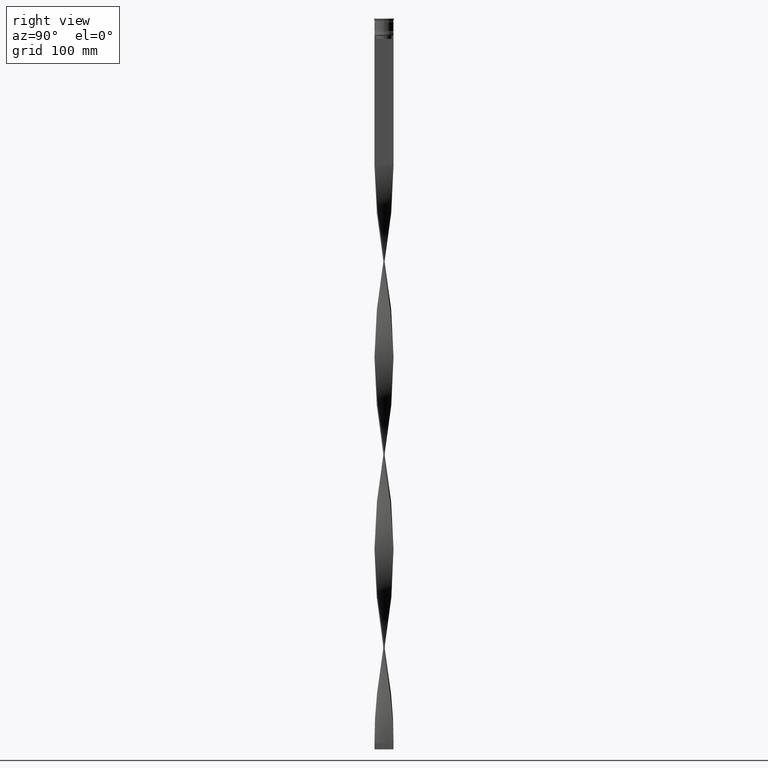
[diagram: clean part render]
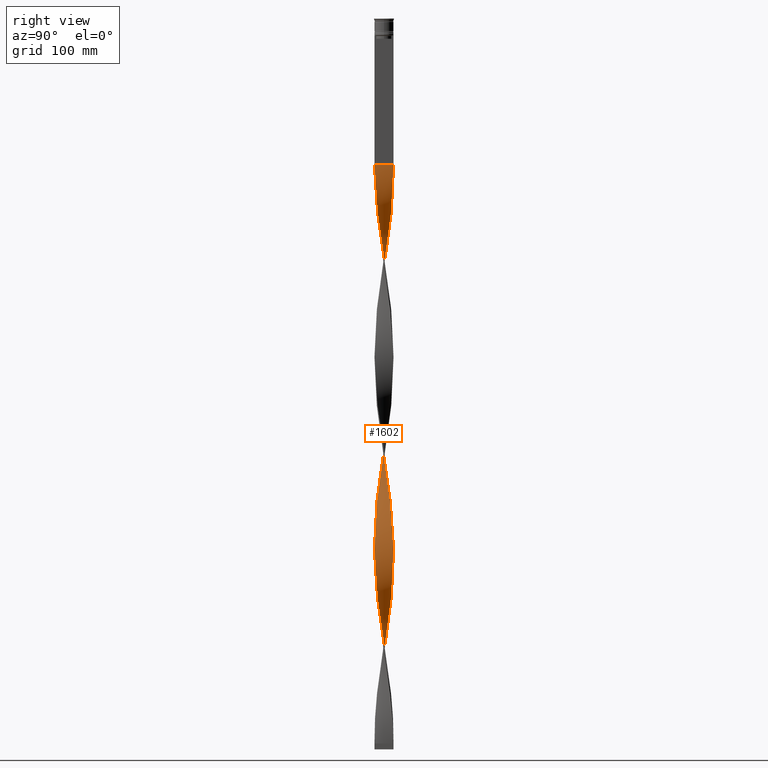
[diagram: same view with one face highlighted and labeled with its STEP entity id]
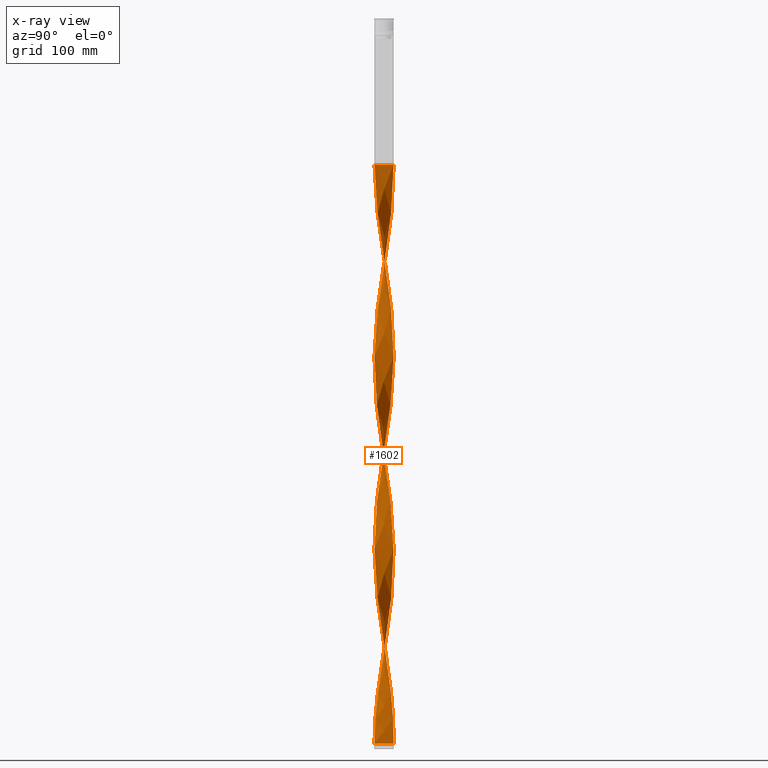
[diagram: x-ray of the same camera — body ghosted, the highlighted face saturated]
A machine part, right view. The second image highlights one B-rep face of the part: STEP entity #1602.
The next image is the same camera in x-ray: the body ghosted, the highlighted face saturated — about 0% of this face is hidden behind the body in this view.
In plain terms, the highlighted face is a freeform B-spline surface patch.
Its self-contained STEP definition (entity closure, byte-faithful):
#5 = CARTESIAN_POINT ( 'NONE',  ( -7.889819750753890304, 1.501686454361714773, -521.5200000000002092 ) ) ;
#8 = CARTESIAN_POINT ( 'NONE',  ( -0.5066085178571945180, 7.999584227297972916, -129.4800000000000182 ) ) ;
#18 = CARTESIAN_POINT ( 'NONE',  ( 3.866277073390941066, -7.039617851728269038, -469.6800000000001205 ) ) ;
#21 = CARTESIAN_POINT ( 'NONE',  ( 5.106790515527261043, -6.178243328853345595, -155.4000000000000057 ) ) ;
#30 = CARTESIAN_POINT ( 'NONE',  ( 0.5066085178571947401, -7.999584227297972916, -291.4800000000000182 ) ) ;
#41 = CARTESIAN_POINT ( 'NONE',  ( 4.297773521152314480, 6.766028581145818066, -252.6000000000000512 ) ) ;
#52 = CARTESIAN_POINT ( 'NONE',  ( 6.190458785190111612, -5.116887524214522642, -333.6000000000000227 ) ) ;
#62 = CARTESIAN_POINT ( 'NONE',  ( 0.003317338029196290321, 8.031457333626828898, -605.7599999999999909 ) ) ;
#66 = CARTESIAN_POINT ( 'NONE',  ( 3.872091084340840705, 7.036421572160664439, -255.8400000000000034 ) ) ;
#74 = CARTESIAN_POINT ( 'NONE',  ( -6.782961227863128606, 4.300669120951436497, -178.0800000000000125 ) ) ;
#87 = CARTESIAN_POINT ( 'NONE',  ( -6.186229683506286214, 5.121999629979046453, -327.1200000000000614 ) ) ;
#88 = CARTESIAN_POINT ( 'NONE',  ( 1.498723219171669063, 7.874250993733667769, -440.5200000000000387 ) ) ;
#97 = CARTESIAN_POINT ( 'NONE',  ( 8.015609087190826543, 0.003310792020373622829, -369.2400000000000091 ) ) ;
#105 = CARTESIAN_POINT ( 'NONE',  ( 7.022536801505622428, -3.864450397080966937, -498.8400000000000318 ) ) ;
#108 = CARTESIAN_POINT ( 'NONE',  ( 1.505227516754523709, 7.873010232611480141, -272.0400000000000205 ) ) ;
#109 = CARTESIAN_POINT ( 'NONE',  ( -6.190458785190113389, 5.116887524214521754, -495.6000000000000227 ) ) ;
#119 = CARTESIAN_POINT ( 'NONE',  ( -1.505227516754521488, 7.873010232611473036, -459.9600000000000364 ) ) ;
#132 = CARTESIAN_POINT ( 'NONE',  ( 6.486710006526624106, 4.708778322582984899, -557.1600000000000819 ) ) ;
#136 = CARTESIAN_POINT ( 'NONE',  ( -7.952818567661519289, -1.001337520448645879, -369.2400000000000091 ) ) ;
#137 = CARTESIAN_POINT ( 'NONE',  ( -5.845393947331967155, 5.484648539377410259, -492.3600000000000136 ) ) ;
#146 = CARTESIAN_POINT ( 'NONE',  ( -7.952818567661513960, 1.001337520448642326, -524.7599999999999909 ) ) ;
#155 = CARTESIAN_POINT ( 'NONE',  ( 3.409884664421551026, -7.254149610763674261, -466.4399999999999977 ) ) ;
#157 = CARTESIAN_POINT ( 'NONE',  ( 7.951988663122376622, -1.007906891321452170, -194.2800000000000011 ) ) ;
#161 = CARTESIAN_POINT ( 'NONE',  ( 0.5000000000000001110, -8.000000000000003553, -123.0000000000000000 ) ) ;
#164 = CARTESIAN_POINT ( 'NONE',  ( 7.451506065510690391, 2.953820806287569489, -388.6800000000000068 ) ) ;
#175 = CARTESIAN_POINT ( 'NONE',  ( -4.292182732835652104, -6.769576603300047957, -583.0800000000000409 ) ) ;
#182 = CARTESIAN_POINT ( 'NONE',  ( 7.639394946319397306, -2.478701829738565010, -353.0400000000000205 ) ) ;
#199 = CARTESIAN_POINT ( 'NONE',  ( 0.5066085178571940739, 7.999584227297980021, -278.5199999999999818 ) ) ;
#207 = CARTESIAN_POINT ( 'NONE',  ( 7.637344718665187493, -2.485011781637413986, -184.5600000000000307 ) ) ;
#218 = CARTESIAN_POINT ( 'NONE',  ( 5.840861161140218805, -5.489475466406950943, -485.8800000000000523 ) ) ;
#219 = CARTESIAN_POINT ( 'NONE',  ( 4.292182732835656545, -6.769576603300054174, -148.9199999999999875 ) ) ;
#226 = CARTESIAN_POINT ( 'NONE',  ( -6.486710006526619665, 4.708778322582978682, -174.8400000000000034 ) ) ;
#237 = CARTESIAN_POINT ( 'NONE',  ( 7.451506065510696608, -2.953820806287573042, -181.3200000000000216 ) ) ;
#244 = CARTESIAN_POINT ( 'NONE',  ( -2.953492255452156989, -7.468681369799075931, -268.8000000000001251 ) ) ;
#259 = CARTESIAN_POINT ( 'NONE',  ( 4.718088392280371579, -6.499535354871838422, -476.1600000000000250 ) ) ;
#269 = CARTESIAN_POINT ( 'NONE',  ( -8.015817384569137616, 0.5009885865355701018, -204.0000000000000284 ) ) ;
#283 = CARTESIAN_POINT ( 'NONE',  ( -8.015817384569144721, -0.5009885865355698797, -365.9999999999999432 ) ) ;
#286 = CARTESIAN_POINT ( 'NONE',  ( -6.482817937080656456, -4.714135296601621228, -563.6399999999999864 ) ) ;
#290 = VERTEX_POINT ( 'NONE', #161 ) ;
#291 = CARTESIAN_POINT ( 'NONE',  ( 7.764607348536644693, -1.990194142050141002, -356.2800000000000296 ) ) ;
#301 = CARTESIAN_POINT ( 'NONE',  ( -3.866277073390940178, 7.039617851728269038, -307.6800000000000637 ) ) ;
#305 = CARTESIAN_POINT ( 'NONE',  ( 6.190458785190118718, 5.116887524214525307, -236.4000000000000341 ) ) ;
#312 = CARTESIAN_POINT ( 'NONE',  ( -7.022536801505615323, -3.864450397080966049, -233.1599999999999966 ) ) ;
#313 = CARTESIAN_POINT ( 'NONE',  ( -0.4999999999999975020, -7.999999999999996447, -609.0000000000000000 ) ) ;
#314 = CARTESIAN_POINT ( 'NONE',  ( -7.764607348536644693, 1.990194142050140114, -194.2800000000000011 ) ) ;
#324 = CARTESIAN_POINT ( 'NONE',  ( -1.505227516754521266, -7.873010232611480141, -434.0400000000000205 ) ) ;
#328 = CARTESIAN_POINT ( 'NONE',  ( -7.637344718665181276, -2.485011781637412209, -547.4400000000001683 ) ) ;
#337 = CARTESIAN_POINT ( 'NONE',  ( -5.111892533718801701, 6.174022572335633896, -485.8800000000000523 ) ) ;
#340 = CARTESIAN_POINT ( 'NONE',  ( -4.723455957963782481, 6.495635590130969916, -158.6400000000000148 ) ) ;
#350 = CARTESIAN_POINT ( 'NONE',  ( 3.409884664421551026, -7.254149610763674261, -466.4399999999999977 ) ) ;
#353 = CARTESIAN_POINT ( 'NONE',  ( -1.994129100314147029, -7.779959321094163549, -599.2800000000000864 ) ) ;
#359 = CARTESIAN_POINT ( 'NONE',  ( -8.015817384569135839, 0.5009885865355701018, -204.0000000000000284 ) ) ;
#370 = CARTESIAN_POINT ( 'NONE',  ( 6.782961227863133047, 4.300669120951441826, -553.9200000000001864 ) ) ;
#372 = CARTESIAN_POINT ( 'NONE',  ( -4.723455957963785146, -6.495635590130977022, -411.3600000000000705 ) ) ;
#379 = CARTESIAN_POINT ( 'NONE',  ( -5.495492638774146066, -5.856951302834849216, -249.3599999999999852 ) ) ;
#392 = CARTESIAN_POINT ( 'NONE',  ( 5.500329109473826250, 5.852409554540304981, -242.8800000000000523 ) ) ;
#402 = CARTESIAN_POINT ( 'NONE',  ( -4.292182732835652104, -6.769576603300047957, -259.0799999999999841 ) ) ;
#409 = EDGE_LOOP ( 'NONE', ( #2758, #2255, #2219, #2095 ) ) ;
#412 = CARTESIAN_POINT ( 'NONE',  ( 7.639394946319403523, 2.478701829738569007, -540.9600000000001501 ) ) ;
#415 = CARTESIAN_POINT ( 'NONE',  ( -2.473810677883156561, 7.624320345446625069, -297.9599999999999795 ) ) ;
#418 = CARTESIAN_POINT ( 'NONE',  ( -7.637344718665181276, -2.485011781637412209, -547.4400000000001683 ) ) ;
#428 = CARTESIAN_POINT ( 'NONE',  ( 6.486710006526620553, -4.708778322582976905, -336.8400000000000318 ) ) ;
#439 = CARTESIAN_POINT ( 'NONE',  ( -4.718088392280372467, 6.499535354871837534, -314.1599999999999682 ) ) ;
#441 = CARTESIAN_POINT ( 'NONE',  ( -7.762960627548698866, -1.996607696852002345, -544.2000000000000455 ) ) ;
#451 = CARTESIAN_POINT ( 'NONE',  ( -2.000555335823852587, 7.778309344253825586, -463.2000000000000455 ) ) ;
#459 = CARTESIAN_POINT ( 'NONE',  ( 0.5066085178571940739, 7.999584227297980021, -602.5200000000000955 ) ) ;
#461 = CARTESIAN_POINT ( 'NONE',  ( -8.015817384569142945, -0.5009885865355698797, -366.0000000000000000 ) ) ;
#462 = CARTESIAN_POINT ( 'NONE',  ( -7.453943633173751415, 2.947664213147155543, -511.8000000000000114 ) ) ;
#472 = CARTESIAN_POINT ( 'NONE',  ( -7.888576536432219122, -1.508203612066591370, -540.9600000000001501 ) ) ;
#487 = CARTESIAN_POINT ( 'NONE',  ( 4.297773521152314480, 6.766028581145818066, -576.6000000000000227 ) ) ;
#489 = CARTESIAN_POINT ( 'NONE',  ( -3.872091084340837153, 7.036421572160659110, -476.1600000000000250 ) ) ;
#498 = CARTESIAN_POINT ( 'NONE',  ( -0.003317338029197808638, 8.031457333626823569, -450.2400000000000659 ) ) ;
#509 = CARTESIAN_POINT ( 'NONE',  ( 2.959661021242742773, 7.466238982642877886, -586.3200000000000500 ) ) ;
#511 = CARTESIAN_POINT ( 'NONE',  ( 8.015609087190831872, -0.003310792020370695483, -200.7599999999999909 ) ) ;
#517 = CARTESIAN_POINT ( 'NONE',  ( -2.959661021242741885, 7.466238982642869892, -469.6800000000001205 ) ) ;
#519 = CARTESIAN_POINT ( 'NONE',  ( 0.5000000000000001110, 7.999999999999996447, -123.0000000000000000 ) ) ;
#527 = CARTESIAN_POINT ( 'NONE',  ( 7.025726773945621950, 3.858647858753593063, -550.6800000000000637 ) ) ;
#530 = CARTESIAN_POINT ( 'NONE',  ( 7.025726773945621950, 3.858647858753593063, -226.6800000000000068 ) ) ;
#538 = CARTESIAN_POINT ( 'NONE',  ( 6.482817937080661785, -4.714135296601624781, -168.3600000000000136 ) ) ;
#556 = CARTESIAN_POINT ( 'NONE',  ( 0.5000000000000001110, -8.000000000000003553, -123.0000000000000000 ) ) ;
#567 = CARTESIAN_POINT ( 'NONE',  ( -7.265667412356199506, -3.422629830937729434, -229.9200000000000443 ) ) ;
#577 = CARTESIAN_POINT ( 'NONE',  ( 6.190458785190118718, 5.116887524214525307, -560.3999999999999773 ) ) ;
#578 = CARTESIAN_POINT ( 'NONE',  ( 7.888576536432224451, -1.508203612066592036, -191.0400000000000205 ) ) ;
#588 = CARTESIAN_POINT ( 'NONE',  ( 0.5066085178571947401, -7.999584227297972916, -291.4800000000000182 ) ) ;
#601 = CARTESIAN_POINT ( 'NONE',  ( -1.009899697685192832, -7.967711120969127592, -437.2800000000000864 ) ) ;
#608 = CARTESIAN_POINT ( 'NONE',  ( 3.872091084340838041, -7.036421572160658222, -314.1599999999999682 ) ) ;
#624 = CARTESIAN_POINT ( 'NONE',  ( -2.953492255452163207, 7.468681369799081260, -301.2000000000000455 ) ) ;
#628 = CARTESIAN_POINT ( 'NONE',  ( 3.866277073390941510, -7.039617851728269926, -145.6800000000000352 ) ) ;
#634 = CARTESIAN_POINT ( 'NONE',  ( -7.453943633173751415, 2.947664213147155543, -187.8000000000000114 ) ) ;
#647 = CARTESIAN_POINT ( 'NONE',  ( -6.486710006526624106, -4.708778322582984011, -395.1600000000000250 ) ) ;
#650 = CARTESIAN_POINT ( 'NONE',  ( 6.782961227863132159, 4.300669120951441826, -229.9200000000000443 ) ) ;
#655 = CARTESIAN_POINT ( 'NONE',  ( -7.951988663122367740, -1.007906891321453502, -213.7200000000000273 ) ) ;
#667 = CARTESIAN_POINT ( 'NONE',  ( -6.186229683506285326, 5.121999629979046453, -327.1200000000001182 ) ) ;
#671 = CARTESIAN_POINT ( 'NONE',  ( 6.779406190655039133, -4.306270963224203108, -171.6000000000000227 ) ) ;
#675 = CARTESIAN_POINT ( 'NONE',  ( -0.003317338029197808204, 8.031457333626821793, -450.2400000000000659 ) ) ;
#678 = CARTESIAN_POINT ( 'NONE',  ( -1.009899697685191278, 7.967711120969122263, -132.7199999999999989 ) ) ;
#688 = CARTESIAN_POINT ( 'NONE',  ( -6.482817937080662674, 4.714135296601623892, -330.3600000000000136 ) ) ;
#701 = CARTESIAN_POINT ( 'NONE',  ( -5.111892533718801701, 6.174022572335633896, -161.8799999999999955 ) ) ;
#716 = CARTESIAN_POINT ( 'NONE',  ( -4.297773521152309151, -6.766028581145820731, -414.6000000000000227 ) ) ;
#727 = CARTESIAN_POINT ( 'NONE',  ( 2.480108178533299235, -7.622274163448346407, -304.4400000000000546 ) ) ;
#737 = CARTESIAN_POINT ( 'NONE',  ( -8.015400789812524351, 0.5076101705763098604, -359.5200000000000387 ) ) ;
#746 = CARTESIAN_POINT ( 'NONE',  ( -7.025726773945617509, 3.858647858753589510, -181.3200000000000216 ) ) ;
#753 = CARTESIAN_POINT ( 'NONE',  ( 6.482817937080661785, -4.714135296601624781, -492.3600000000000136 ) ) ;
#757 = CARTESIAN_POINT ( 'NONE',  ( -3.866277073390940622, 7.039617851728269926, -307.6800000000000637 ) ) ;
#758 = CARTESIAN_POINT ( 'NONE',  ( -8.015817384569137616, 0.5009885865355701018, -528.0000000000000000 ) ) ;
#770 = CARTESIAN_POINT ( 'NONE',  ( 6.779406190655031139, 4.306270963224203996, -398.4000000000000909 ) ) ;
#783 = CARTESIAN_POINT ( 'NONE',  ( -7.764607348536649134, -1.990194142050145665, -375.7199999999999704 ) ) ;
#786 = CARTESIAN_POINT ( 'NONE',  ( -8.015400789812517246, -0.5076101705763140792, -534.4800000000000182 ) ) ;
#795 = CARTESIAN_POINT ( 'NONE',  ( -5.500329109473821809, 5.852409554540299652, -489.1200000000001182 ) ) ;
#796 = CARTESIAN_POINT ( 'NONE',  ( -0.5066085178571945180, 7.999584227297972916, -129.4800000000000182 ) ) ;
#804 = CARTESIAN_POINT ( 'NONE',  ( 2.000555335823852143, 7.778309344253832691, -592.8000000000001819 ) ) ;
#808 = CARTESIAN_POINT ( 'NONE',  ( -1.003317338029198424, 7.968542666373180872, -288.2400000000001228 ) ) ;
#809 = CARTESIAN_POINT ( 'NONE',  ( 3.866277073390933960, 7.039617851728265485, -424.3200000000000500 ) ) ;
#819 = CARTESIAN_POINT ( 'NONE',  ( -7.268492320028109077, 3.416626596555742523, -508.5600000000001160 ) ) ;
#830 = CARTESIAN_POINT ( 'NONE',  ( 7.952818567661520177, 1.001337520448643437, -531.2400000000000091 ) ) ;
#832 = CARTESIAN_POINT ( 'NONE',  ( -2.000555335823852143, 7.778309344253825586, -463.2000000000000455 ) ) ;
#843 = CARTESIAN_POINT ( 'NONE',  ( 8.015817384569135839, -0.5009885865355728773, -366.0000000000000000 ) ) ;
#846 = FACE_OUTER_BOUND ( 'NONE', #409, .T. ) ;
#857 = CARTESIAN_POINT ( 'NONE',  ( 3.872091084340840705, 7.036421572160664439, -579.8400000000001455 ) ) ;
#859 = CARTESIAN_POINT ( 'NONE',  ( 8.015817384569144721, 0.5009885865355727663, -204.0000000000000284 ) ) ;
#867 = CARTESIAN_POINT ( 'NONE',  ( 7.637344718665179499, 2.485011781637414430, -385.4399999999999977 ) ) ;
#880 = CARTESIAN_POINT ( 'NONE',  ( 7.639394946319403523, 2.478701829738569451, -540.9600000000001501 ) ) ;
#881 = CARTESIAN_POINT ( 'NONE',  ( 7.453943633173757632, 2.947664213147158208, -220.2000000000000171 ) ) ;
#889 = CARTESIAN_POINT ( 'NONE',  ( -4.292182732835652104, -6.769576603300047957, -583.0800000000000409 ) ) ;
#893 = CARTESIAN_POINT ( 'NONE',  ( -2.480108178533296570, 7.622274163448347295, -142.4399999999999977 ) ) ;
#903 = CARTESIAN_POINT ( 'NONE',  ( 1.505227516754523709, 7.873010232611480141, -596.0399999999999636 ) ) ;
#905 = CARTESIAN_POINT ( 'NONE',  ( 5.106790515527261043, -6.178243328853345595, -155.4000000000000057 ) ) ;
#910 = CARTESIAN_POINT ( 'NONE',  ( -7.889819750753890304, 1.501686454361714773, -197.5200000000000387 ) ) ;
#921 = CARTESIAN_POINT ( 'NONE',  ( 8.015400789812524351, -0.5076101705763141902, -521.5200000000000955 ) ) ;
#924 = CARTESIAN_POINT ( 'NONE',  ( 1.003317338029198647, -7.968542666373180872, -126.2400000000000233 ) ) ;
#936 = CARTESIAN_POINT ( 'NONE',  ( -0.4999999999999975020, -7.999999999999996447, -285.0000000000000568 ) ) ;
#947 = CARTESIAN_POINT ( 'NONE',  ( 2.953492255452160542, -7.468681369799081260, -139.1999999999999602 ) ) ;
#956 = CARTESIAN_POINT ( 'NONE',  ( -6.186229683506279109, -5.121999629979042012, -242.8800000000000239 ) ) ;
#969 = CARTESIAN_POINT ( 'NONE',  ( 5.840861161140218805, -5.489475466406950943, -485.8800000000000523 ) ) ;
#972 = CARTESIAN_POINT ( 'NONE',  ( 8.015609087190831872, -0.003310792020370695483, -200.7599999999999909 ) ) ;
#978 = CARTESIAN_POINT ( 'NONE',  ( 7.453943633173751415, -2.947664213147155987, -349.8000000000000114 ) ) ;
#992 = CARTESIAN_POINT ( 'NONE',  ( -7.951988663122376622, 1.007906891321453058, -356.2800000000000296 ) ) ;
#995 = CARTESIAN_POINT ( 'NONE',  ( 7.453943633173757632, 2.947664213147158208, -220.2000000000000171 ) ) ;
#1003 = CARTESIAN_POINT ( 'NONE',  ( 4.723455957963784257, -6.495635590130969028, -320.6400000000001000 ) ) ;
#1015 = CARTESIAN_POINT ( 'NONE',  ( -1.994129100314149472, 7.779959321094168878, -294.7199999999999136 ) ) ;
#1020 = CARTESIAN_POINT ( 'NONE',  ( 1.498723219171673504, -7.874250993733674875, -129.4800000000000182 ) ) ;
#1023 = CARTESIAN_POINT ( 'NONE',  ( 5.495492638774146954, 5.856951302834849216, -411.3600000000000705 ) ) ;
#1026 = CARTESIAN_POINT ( 'NONE',  ( 4.297773521152310927, -6.766028581145812737, -317.4000000000000341 ) ) ;
#1035 = CARTESIAN_POINT ( 'NONE',  ( -8.015400789812524351, 0.5076101705763097494, -359.5200000000000955 ) ) ;
#1050 = CARTESIAN_POINT ( 'NONE',  ( -3.409884664421546585, -7.254149610763668932, -265.5600000000000023 ) ) ;
#1060 = CARTESIAN_POINT ( 'NONE',  ( -7.025726773945623727, -3.858647858753592175, -388.6800000000000068 ) ) ;
#1065 = CARTESIAN_POINT ( 'NONE',  ( -7.889819750753897409, -1.501686454361714995, -372.4800000000000750 ) ) ;
#1077 = CARTESIAN_POINT ( 'NONE',  ( 5.500329109473821809, -5.852409554540299652, -327.1200000000000614 ) ) ;
#1086 = CARTESIAN_POINT ( 'NONE',  ( -3.409884664421553691, 7.254149610763673373, -304.4400000000000546 ) ) ;
#1093 = CARTESIAN_POINT ( 'NONE',  ( -7.451506065510689503, -2.953820806287570377, -226.6800000000000068 ) ) ;
#1101 = CARTESIAN_POINT ( 'NONE',  ( 7.952818567661520177, 1.001337520448643437, -531.2400000000000091 ) ) ;
#1103 = CARTESIAN_POINT ( 'NONE',  ( -5.500329109473826250, -5.852409554540304981, -404.8799999999999955 ) ) ;
#1105 = CARTESIAN_POINT ( 'NONE',  ( -7.888576536432219122, -1.508203612066591148, -540.9600000000001501 ) ) ;
#1112 = CARTESIAN_POINT ( 'NONE',  ( -7.637344718665181276, -2.485011781637412209, -223.4399999999999977 ) ) ;
#1123 = CARTESIAN_POINT ( 'NONE',  ( -7.888576536432226227, 1.508203612066590038, -353.0400000000000205 ) ) ;
#1125 = CARTESIAN_POINT ( 'NONE',  ( 7.762960627548699755, 1.996607696851999680, -382.2000000000000455 ) ) ;
#1136 = CARTESIAN_POINT ( 'NONE',  ( -2.480108178533296570, 7.622274163448347295, -466.4399999999999977 ) ) ;
#1147 = CARTESIAN_POINT ( 'NONE',  ( 7.268492320028115294, 3.416626596555746076, -547.4400000000001683 ) ) ;
#1150 = CARTESIAN_POINT ( 'NONE',  ( -4.292182732835657433, 6.769576603300054174, -310.9199999999999591 ) ) ;
#1152 = CARTESIAN_POINT ( 'NONE',  ( -6.779406190655033804, -4.306270963224198667, -560.3999999999999773 ) ) ;
#1161 = CARTESIAN_POINT ( 'NONE',  ( -8.015817384569135839, 0.5009885865355701018, -528.0000000000000000 ) ) ;
#1170 = CARTESIAN_POINT ( 'NONE',  ( 8.015400789812524351, -0.5076101705763140792, -521.5200000000002092 ) ) ;
#1174 = CARTESIAN_POINT ( 'NONE',  ( 7.453943633173757632, 2.947664213147158208, -544.2000000000000455 ) ) ;
#1176 = CARTESIAN_POINT ( 'NONE',  ( 7.022536801505615323, 3.864450397080965161, -395.1600000000000250 ) ) ;
#1185 = CARTESIAN_POINT ( 'NONE',  ( 7.265667412356198618, 3.422629830937731654, -391.9200000000001296 ) ) ;
#1187 = CARTESIAN_POINT ( 'NONE',  ( -2.959661021242742329, 7.466238982642869004, -145.6800000000000352 ) ) ;
#1195 = CARTESIAN_POINT ( 'NONE',  ( 8.015817384569142945, 0.5009885865355726553, -528.0000000000000000 ) ) ;
#1196 = CARTESIAN_POINT ( 'NONE',  ( 5.845393947331972484, 5.484648539377414700, -239.6400000000000148 ) ) ;
#1205 = CARTESIAN_POINT ( 'NONE',  ( 1.994129100314147918, 7.779959321094163549, -437.2800000000000296 ) ) ;
#1222 = VECTOR ( 'NONE', #3966, 1000.000000000000000 ) ;
#1223 = CARTESIAN_POINT ( 'NONE',  ( -5.495492638774146066, -5.856951302834849216, -573.3600000000000136 ) ) ;
#1231 = CARTESIAN_POINT ( 'NONE',  ( 8.015400789812517246, 0.5076101705763128580, -372.4800000000000750 ) ) ;
#1234 = CARTESIAN_POINT ( 'NONE',  ( -1.505227516754521488, 7.873010232611473036, -135.9600000000000080 ) ) ;
#1235 = CARTESIAN_POINT ( 'NONE',  ( 0.5000000000000001110, -8.000000000000003553, -123.0000000000000000 ) ) ;
#1242 = CARTESIAN_POINT ( 'NONE',  ( 0.5066085178571940739, 7.999584227297980021, -602.5200000000000955 ) ) ;
#1243 = CARTESIAN_POINT ( 'NONE',  ( -5.106790515527258378, -6.178243328853339378, -576.6000000000000227 ) ) ;
#1247 = CARTESIAN_POINT ( 'NONE',  ( 8.015400789812524351, -0.5076101705763141902, -197.5200000000000387 ) ) ;
#1248 = CARTESIAN_POINT ( 'NONE',  ( -5.840861161140211699, -5.489475466406946502, -246.1200000000000045 ) ) ;
#1257 = CARTESIAN_POINT ( 'NONE',  ( 7.951988663122376622, -1.007906891321452170, -518.2800000000000864 ) ) ;
#1259 = CARTESIAN_POINT ( 'NONE',  ( -1.003317338029196426, -7.968542666373174654, -605.7599999999999909 ) ) ;
#1268 = CARTESIAN_POINT ( 'NONE',  ( -7.762960627548698866, -1.996607696852002345, -220.2000000000000171 ) ) ;
#1282 = CARTESIAN_POINT ( 'NONE',  ( 2.000555335823852143, 7.778309344253832691, -268.8000000000001251 ) ) ;
#1290 = CARTESIAN_POINT ( 'NONE',  ( -5.106790515527258378, -6.178243328853339378, -252.6000000000000512 ) ) ;
#1301 = CARTESIAN_POINT ( 'NONE',  ( 5.495492638774150507, -5.856951302834852768, -482.6400000000001000 ) ) ;
#1311 = CARTESIAN_POINT ( 'NONE',  ( 2.959661021242741885, -7.466238982642869004, -307.6800000000000637 ) ) ;
#1324 = CARTESIAN_POINT ( 'NONE',  ( -4.292182732835657433, 6.769576603300054174, -310.9199999999999591 ) ) ;
#1327 = CARTESIAN_POINT ( 'NONE',  ( 7.764607348536650022, 1.990194142050143666, -213.7200000000000273 ) ) ;
#1333 = CARTESIAN_POINT ( 'NONE',  ( 2.480108178533299235, -7.622274163448346407, -304.4400000000000546 ) ) ;
#1346 = CARTESIAN_POINT ( 'NONE',  ( -4.718088392280372467, 6.499535354871837534, -314.1599999999999682 ) ) ;
#1349 = CARTESIAN_POINT ( 'NONE',  ( -3.866277073390936625, -7.039617851728263709, -586.3200000000000500 ) ) ;
#1356 = CARTESIAN_POINT ( 'NONE',  ( 3.409884664421547473, 7.254149610763668932, -427.5600000000000023 ) ) ;
#1359 = CARTESIAN_POINT ( 'NONE',  ( 1.505227516754523265, -7.873010232611473036, -297.9599999999999795 ) ) ;
#1369 = CARTESIAN_POINT ( 'NONE',  ( -7.762960627548705084, 1.996607696852004565, -349.8000000000000114 ) ) ;
#1370 = CARTESIAN_POINT ( 'NONE',  ( -0.4999999999999992784, -2.666666666666663410, -609.0000000000000000 ) ) ;
#1372 = CARTESIAN_POINT ( 'NONE',  ( -3.409884664421546585, -7.254149610763668932, -589.5600000000000591 ) ) ;
#1378 = CARTESIAN_POINT ( 'NONE',  ( -7.952818567661513960, 1.001337520448642326, -524.7599999999999909 ) ) ;
#1380 = CARTESIAN_POINT ( 'NONE',  ( -2.000555335823852587, 7.778309344253825586, -139.1999999999999886 ) ) ;
#1391 = CARTESIAN_POINT ( 'NONE',  ( 2.473810677883154785, -7.624320345446625069, -459.9600000000000364 ) ) ;
#1394 = CARTESIAN_POINT ( 'NONE',  ( -1.498723219171671284, -7.874250993733667769, -602.5200000000000955 ) ) ;
#1401 = CARTESIAN_POINT ( 'NONE',  ( 0.003317338029197591798, -8.031457333626823569, -288.2400000000001228 ) ) ;
#1414 = CARTESIAN_POINT ( 'NONE',  ( -2.000555335823849035, -7.778309344253833579, -430.8000000000000682 ) ) ;
#1427 = CARTESIAN_POINT ( 'NONE',  ( -7.268492320028109077, 3.416626596555742523, -184.5600000000000307 ) ) ;
#1440 = CARTESIAN_POINT ( 'NONE',  ( 2.959661021242742773, 7.466238982642877886, -262.3199999999999932 ) ) ;
#1449 = CARTESIAN_POINT ( 'NONE',  ( -7.762960627548698866, -1.996607696852002345, -220.2000000000000171 ) ) ;
#1462 = CARTESIAN_POINT ( 'NONE',  ( 1.009899697685191944, 7.967711120969127592, -275.2799999999999727 ) ) ;
#1463 = CARTESIAN_POINT ( 'NONE',  ( -1.505227516754521488, 7.873010232611473036, -459.9600000000000364 ) ) ;
#1471 = CARTESIAN_POINT ( 'NONE',  ( 6.482817937080655568, 4.714135296601623004, -401.6399999999999864 ) ) ;
#1478 = VERTEX_POINT ( 'NONE', #519 ) ;
#1481 = CARTESIAN_POINT ( 'NONE',  ( 6.190458785190118718, 5.116887524214525307, -560.3999999999999773 ) ) ;
#1484 = CARTESIAN_POINT ( 'NONE',  ( -6.486710006526624106, -4.708778322582984011, -395.1600000000000250 ) ) ;
#1485 = CARTESIAN_POINT ( 'NONE',  ( -7.639394946319396418, 2.478701829738566342, -515.0400000000001910 ) ) ;
#1495 = CARTESIAN_POINT ( 'NONE',  ( -6.486710006526619665, 4.708778322582978682, -498.8400000000000318 ) ) ;
#1507 = CARTESIAN_POINT ( 'NONE',  ( -0.5000000000000027756, 8.000000000000003553, -609.0000000000000000 ) ) ;
#1511 = CARTESIAN_POINT ( 'NONE',  ( 7.764607348536650022, 1.990194142050143666, -537.7200000000000273 ) ) ;
#1513 = CARTESIAN_POINT ( 'NONE',  ( 6.779406190655031139, 4.306270963224203996, -398.4000000000000909 ) ) ;
#1522 = CARTESIAN_POINT ( 'NONE',  ( -4.723455957963782481, 6.495635590130969916, -482.6400000000000432 ) ) ;
#1533 = CARTESIAN_POINT ( 'NONE',  ( 7.022536801505622428, -3.864450397080966937, -498.8400000000000318 ) ) ;
#1536 = CARTESIAN_POINT ( 'NONE',  ( 3.409884664421551026, -7.254149610763674261, -142.4399999999999977 ) ) ;
#1542 = CARTESIAN_POINT ( 'NONE',  ( 2.953492255452154325, 7.468681369799075931, -430.8000000000000682 ) ) ;
#1554 = CARTESIAN_POINT ( 'NONE',  ( 3.872091084340840705, 7.036421572160664439, -255.8399999999999750 ) ) ;
#1563 = CARTESIAN_POINT ( 'NONE',  ( 4.292182732835652992, 6.769576603300047957, -421.0799999999999841 ) ) ;
#1578 = CARTESIAN_POINT ( 'NONE',  ( 2.473810677883154785, -7.624320345446625069, -459.9600000000000364 ) ) ;
#1579 = CARTESIAN_POINT ( 'NONE',  ( 6.782961227863133047, 4.300669120951441826, -229.9200000000000443 ) ) ;
#1586 = CARTESIAN_POINT ( 'NONE',  ( 7.762960627548705084, -1.996607696852003677, -187.8000000000000114 ) ) ;
#1596 = CARTESIAN_POINT ( 'NONE',  ( 2.953492255452160986, -7.468681369799080372, -463.2000000000000455 ) ) ;
#1597 = CARTESIAN_POINT ( 'NONE',  ( 6.482817937080661785, -4.714135296601624781, -168.3600000000000136 ) ) ;
#1602 = ADVANCED_FACE ( 'NONE', ( #846 ), #2125, .T. ) ;
#1603 = CARTESIAN_POINT ( 'NONE',  ( -4.718088392280368026, -6.499535354871833093, -255.8399999999999750 ) ) ;
#1614 = CARTESIAN_POINT ( 'NONE',  ( 4.297773521152314480, 6.766028581145818066, -252.6000000000000512 ) ) ;
#1621 = CARTESIAN_POINT ( 'NONE',  ( 6.486710006526620553, -4.708778322582976905, -336.8400000000000318 ) ) ;
#1640 = CARTESIAN_POINT ( 'NONE',  ( 5.106790515527261043, -6.178243328853345595, -479.4000000000000341 ) ) ;
#1649 = CARTESIAN_POINT ( 'NONE',  ( 7.025726773945620174, -3.858647858753585957, -343.3199999999999932 ) ) ;
#1658 = CARTESIAN_POINT ( 'NONE',  ( -7.764607348536649134, -1.990194142050145665, -375.7199999999999704 ) ) ;
#1662 = CARTESIAN_POINT ( 'NONE',  ( 7.952818567661520177, 1.001337520448643437, -207.2400000000000091 ) ) ;
#1667 = CARTESIAN_POINT ( 'NONE',  ( 5.111892533718801701, -6.174022572335633896, -323.8799999999999955 ) ) ;
#1678 = CARTESIAN_POINT ( 'NONE',  ( -5.845393947331969819, -5.484648539377416476, -401.6399999999999864 ) ) ;
#1681 = CARTESIAN_POINT ( 'NONE',  ( 7.022536801505622428, -3.864450397080966937, -174.8400000000000034 ) ) ;
#1687 = CARTESIAN_POINT ( 'NONE',  ( -1.498723219171671284, -7.874250993733667769, -278.5199999999999818 ) ) ;
#1691 = CARTESIAN_POINT ( 'NONE',  ( -2.953492255452156989, -7.468681369799075931, -268.8000000000000682 ) ) ;
#1703 = CARTESIAN_POINT ( 'NONE',  ( -0.003317338029197266971, -8.031457333626828898, -443.7599999999999909 ) ) ;
#1707 = CARTESIAN_POINT ( 'NONE',  ( -6.186229683506279997, -5.121999629979042012, -566.8799999999999955 ) ) ;
#1716 = CARTESIAN_POINT ( 'NONE',  ( 5.840861161140209923, 5.489475466406948279, -408.1200000000000614 ) ) ;
#1718 = CARTESIAN_POINT ( 'NONE',  ( -6.190458785190113389, 5.116887524214520866, -171.6000000000000227 ) ) ;
#1727 = CARTESIAN_POINT ( 'NONE',  ( 1.994129100314148584, -7.779959321094168878, -456.7200000000000841 ) ) ;
#1730 = CARTESIAN_POINT ( 'NONE',  ( 4.292182732835656545, -6.769576603300054174, -148.9199999999999875 ) ) ;
#1735 = CARTESIAN_POINT ( 'NONE',  ( -7.951988663122367740, -1.007906891321453502, -213.7200000000000273 ) ) ;
#1749 = CARTESIAN_POINT ( 'NONE',  ( -2.959661021242740553, -7.466238982642877886, -424.3200000000000500 ) ) ;
#1756 = CARTESIAN_POINT ( 'NONE',  ( -5.106790515527258378, -6.178243328853339378, -252.6000000000000512 ) ) ;
#1767 = CARTESIAN_POINT ( 'NONE',  ( 7.265667412356207500, -3.422629830937730322, -502.0800000000000409 ) ) ;
#1771 = CARTESIAN_POINT ( 'NONE',  ( 5.111892533718805254, 6.174022572335640113, -246.1200000000000045 ) ) ;
#1784 = CARTESIAN_POINT ( 'NONE',  ( -1.498723219171671284, -7.874250993733667769, -278.5199999999999818 ) ) ;
#1793 = CARTESIAN_POINT ( 'NONE',  ( 3.415876052791791739, 7.251330277401769386, -583.0800000000000409 ) ) ;
#1797 = CARTESIAN_POINT ( 'NONE',  ( -5.840861161140218805, 5.489475466406950943, -323.8799999999999955 ) ) ;
#1798 = CARTESIAN_POINT ( 'NONE',  ( 0.5000000000000001110, 7.999999999999996447, -447.0000000000000000 ) ) ;
#1806 = CARTESIAN_POINT ( 'NONE',  ( 7.764607348536644693, -1.990194142050141002, -356.2800000000000296 ) ) ;
#1817 = CARTESIAN_POINT ( 'NONE',  ( -7.951988663122376622, 1.007906891321453058, -356.2800000000000296 ) ) ;
#1818 = CARTESIAN_POINT ( 'NONE',  ( -7.265667412356199506, -3.422629830937729434, -553.9200000000001864 ) ) ;
#1828 = CARTESIAN_POINT ( 'NONE',  ( 3.409884664421547473, 7.254149610763668932, -427.5600000000000023 ) ) ;
#1831 = CARTESIAN_POINT ( 'NONE',  ( -1.009899697685191056, 7.967711120969122263, -132.7199999999999989 ) ) ;
#1837 = CARTESIAN_POINT ( 'NONE',  ( 5.845393947331972484, 5.484648539377414700, -563.6399999999999864 ) ) ;
#1839 = CARTESIAN_POINT ( 'NONE',  ( -0.5066085178571916314, -7.999584227297980021, -440.5200000000000387 ) ) ;
#1841 = CARTESIAN_POINT ( 'NONE',  ( 7.451506065510690391, 2.953820806287569489, -388.6800000000000068 ) ) ;
#1850 = CARTESIAN_POINT ( 'NONE',  ( 7.762960627548699755, 1.996607696851999680, -382.2000000000000455 ) ) ;
#1865 = CARTESIAN_POINT ( 'NONE',  ( -6.186229683506279109, -5.121999629979042012, -566.8799999999999955 ) ) ;
#1871 = CARTESIAN_POINT ( 'NONE',  ( 6.186229683506280885, 5.121999629979041124, -404.8799999999999955 ) ) ;
#1881 = CARTESIAN_POINT ( 'NONE',  ( 6.186229683506286214, -5.121999629979046453, -489.1200000000001182 ) ) ;
#1883 = CARTESIAN_POINT ( 'NONE',  ( 7.952818567661520177, 1.001337520448643437, -207.2400000000000091 ) ) ;
#1890 = CARTESIAN_POINT ( 'NONE',  ( 4.718088392280365362, 6.499535354871834869, -417.8400000000000887 ) ) ;
#1901 = CARTESIAN_POINT ( 'NONE',  ( 1.009899697685191944, 7.967711120969127592, -599.2800000000000864 ) ) ;
#1903 = CARTESIAN_POINT ( 'NONE',  ( 6.486710006526624106, 4.708778322582984899, -233.1599999999999966 ) ) ;
#1912 = CARTESIAN_POINT ( 'NONE',  ( 7.265667412356207500, -3.422629830937730322, -178.0800000000000125 ) ) ;
#1929 = CARTESIAN_POINT ( 'NONE',  ( 6.482817937080661785, -4.714135296601624781, -492.3600000000000136 ) ) ;
#1931 = CARTESIAN_POINT ( 'NONE',  ( 2.473810677883154785, -7.624320345446625069, -135.9600000000000080 ) ) ;
#1941 = CARTESIAN_POINT ( 'NONE',  ( -6.482817937080656456, -4.714135296601621228, -239.6400000000000148 ) ) ;
#1950 = CARTESIAN_POINT ( 'NONE',  ( 2.480108178533297458, 7.622274163448353512, -589.5600000000000591 ) ) ;
#1951 = CARTESIAN_POINT ( 'NONE',  ( 5.111892533718805254, 6.174022572335640113, -246.1200000000000045 ) ) ;
#1959 = CARTESIAN_POINT ( 'NONE',  ( 1.505227516754523265, -7.873010232611473036, -297.9599999999999795 ) ) ;
#1972 = CARTESIAN_POINT ( 'NONE',  ( 4.292182732835656545, -6.769576603300054174, -472.9200000000000159 ) ) ;
#1978 = CARTESIAN_POINT ( 'NONE',  ( 4.297773521152310927, -6.766028581145812737, -317.4000000000000341 ) ) ;
#1994 = CARTESIAN_POINT ( 'NONE',  ( -6.779406190655039133, 4.306270963224204884, -333.6000000000000227 ) ) ;
#1997 = CARTESIAN_POINT ( 'NONE',  ( -2.953492255452156989, -7.468681369799075931, -592.8000000000000682 ) ) ;
#2005 = CARTESIAN_POINT ( 'NONE',  ( -6.779406190655033804, -4.306270963224198667, -236.4000000000000341 ) ) ;
#2018 = CARTESIAN_POINT ( 'NONE',  ( -7.639394946319403523, -2.478701829738569895, -378.9600000000000932 ) ) ;
#2022 = CARTESIAN_POINT ( 'NONE',  ( 0.5000000000000001110, -8.000000000000003553, -123.0000000000000000 ) ) ;
#2032 = CARTESIAN_POINT ( 'NONE',  ( -1.994129100314146807, -7.779959321094163549, -275.2799999999999727 ) ) ;
#2034 = CARTESIAN_POINT ( 'NONE',  ( 3.415876052791789519, -7.251330277401763169, -310.9199999999999591 ) ) ;
#2044 = CARTESIAN_POINT ( 'NONE',  ( -3.872091084340838041, -7.036421572160664439, -417.8400000000001455 ) ) ;
#2047 = CARTESIAN_POINT ( 'NONE',  ( -0.4999999999999975020, -7.999999999999996447, -609.0000000000000000 ) ) ;
#2052 = CARTESIAN_POINT ( 'NONE',  ( -3.415876052791789075, 7.251330277401763169, -472.9200000000000159 ) ) ;
#2055 = CARTESIAN_POINT ( 'NONE',  ( -4.297773521152309151, 6.766028581145814513, -155.4000000000000057 ) ) ;
#2065 = CARTESIAN_POINT ( 'NONE',  ( -2.959661021242740553, -7.466238982642876998, -424.3200000000000500 ) ) ;
#2070 = VERTEX_POINT ( 'NONE', #2688 ) ;
#2071 = CARTESIAN_POINT ( 'NONE',  ( 1.003317338029198647, -7.968542666373180872, -126.2400000000000233 ) ) ;
#2079 = CARTESIAN_POINT ( 'NONE',  ( -7.639394946319396418, 2.478701829738566786, -191.0400000000000205 ) ) ;
#2087 = CARTESIAN_POINT ( 'NONE',  ( 2.000555335823852587, 7.778309344253832691, -268.8000000000000682 ) ) ;
#2095 = ORIENTED_EDGE ( 'NONE', *, *, #3450, .F. ) ;
#2097 = CARTESIAN_POINT ( 'NONE',  ( -6.482817937080656456, -4.714135296601621228, -239.6400000000000148 ) ) ;
#2106 = CARTESIAN_POINT ( 'NONE',  ( 3.872091084340840705, 7.036421572160664439, -579.8400000000001455 ) ) ;
#2109 = CARTESIAN_POINT ( 'NONE',  ( -7.022536801505624204, 3.864450397080964716, -336.8400000000000318 ) ) ;
#2117 = CARTESIAN_POINT ( 'NONE',  ( -7.022536801505615323, -3.864450397080966049, -233.1599999999999966 ) ) ;
#2125 =( BOUNDED_SURFACE ( )  B_SPLINE_SURFACE ( 1, 2, ( 
 ( #4322, #3208, #796, #1831, #1234, #2604, #893, #1187, #3594, #2977, #3361, #2619, #3322, #4000, #4045, #4357, #226, #2369, #4088, #3407, #634, #4340, #2324, #910, #3048, #269, #3748, #2705, #655, #2279, #1268, #3662, #4409, #567, #312, #2005, #1941, #956, #1248, #4025, #1290, #1603, #3001, #2642, #3683, #244, #2660, #2032, #1687, #3701, #936, #2302, #588, #3385, #1959, #4432, #1333, #1311, #3723, #608, #1978, #1003, #1667, #2681, #4067, #3336, #1621, #4385, #1649, #3027, #978, #2343, #291, #3088, #3849, #2159, #2889, #2202, #3900, #3066, #1125, #2728, #1841, #3534, #1176, #1513, #2545, #4114, #1716, #1023, #3195, #2390, #3582, #809, #1356, #4217, #4453, #2812, #88, #3768, #1798, #675, #2472, #3509, #1463, #832, #3926, #2835, #2052, #489, #3428, #2179, #337, #3224, #137, #109, #2520, #2497, #3875, #4270, #462, #1485, #2862, #5, #1378, #758, #2136, #786, #4194, #1105, #441, #418, #3173, #1818, #4244, #1152, #3554, #1865, #2315, #1223, #1243, #2251, #175, #3652, #2928, #2953, #3949, #3994, #3314, #1259, #2270 ),
 ( #556, #924, #4014, #4350, #1931, #947, #1536, #2632, #219, #4038, #905, #3628, #3695, #3247, #1597, #3292, #2596, #2971, #237, #3976, #2293, #578, #157, #2912, #511, #859, #1883, #2230, #4287, #3675, #881, #3268, #530, #1579, #1903, #2611, #1196, #4332, #1951, #3330, #1614, #1554, #2569, #2990, #4373, #1282, #2655, #3604, #199, #4310, #3713, #4058, #2761, #1015, #4076, #624, #4422, #301, #1324, #1346, #4142, #3057, #2402, #667, #688, #1994, #3019, #2381, #2720, #3441, #1369, #3780, #992, #1035, #3377, #283, #2694, #3039, #1658, #2018, #2361, #3739, #1060, #2741, #647, #3399, #1678, #4441, #4126, #4106, #3759, #2044, #3100, #2065, #4472, #3419, #324, #601, #3351, #1703, #3080, #4401, #2421, #1727, #1391, #2673, #350, #18, #1972, #259, #1640, #1301, #969, #2335, #753, #2129, #105, #1767, #3504, #2154, #3216, #3461, #3870, #1170, #2856, #4166, #1101, #3169, #2467, #412, #3121, #1147, #2491, #370, #132, #1481, #1837, #3191, #2515, #4212, #4238, #2106, #1793, #2175, #3895, #804, #2807, #3550, #459, #62, #1507 ) ),
 .UNSPECIFIED., .F., .F., .F. ) 
 B_SPLINE_SURFACE_WITH_KNOTS ( ( 2, 2 ),
 ( 3, 2, 2, 2, 2, 2, 2, 2, 2, 2, 2, 2, 2, 2, 2, 2, 2, 2, 2, 2, 2, 2, 2, 2, 2, 2, 2, 2, 2, 2, 2, 2, 2, 2, 2, 2, 2, 2, 2, 2, 2, 2, 2, 2, 2, 2, 2, 2, 2, 2, 2, 2, 2, 2, 2, 2, 2, 2, 2, 2, 2, 2, 2, 2, 2, 2, 2, 2, 2, 2, 2, 2, 2, 2, 2, 3 ),
 ( 0.000000000000000000, 1.000000000000000000 ),
 ( 0.000000000000000000, 0.01000000000000000021, 0.02000000000000000042, 0.02999999999999999889, 0.04000000000000000083, 0.05000000000000000278, 0.05999999999999999778, 0.07000000000000000666, 0.08000000000000000167, 0.08999999999999999667, 0.1000000000000000056, 0.1100000000000000006, 0.1199999999999999956, 0.1300000000000000044, 0.1400000000000000133, 0.1499999999999999944, 0.1600000000000000033, 0.1700000000000000122, 0.1799999999999999933, 0.1900000000000000022, 0.2000000000000000111, 0.2099999999999999922, 0.2200000000000000011, 0.2300000000000000100, 0.2399999999999999911, 0.2500000000000000000, 0.2600000000000000089, 0.2700000000000000178, 0.2800000000000000266, 0.2899999999999999800, 0.2999999999999999889, 0.3099999999999999978, 0.3200000000000000067, 0.3300000000000000155, 0.3400000000000000244, 0.3499999999999999778, 0.3599999999999999867, 0.3699999999999999956, 0.3800000000000000044, 0.3900000000000000133, 0.4000000000000000222, 0.4099999999999999756, 0.4199999999999999845, 0.4299999999999999933, 0.4400000000000000022, 0.4500000000000000111, 0.4600000000000000200, 0.4699999999999999734, 0.4799999999999999822, 0.4899999999999999911, 0.5000000000000000000, 0.5100000000000000089, 0.5200000000000000178, 0.5300000000000000266, 0.5400000000000000355, 0.5500000000000000444, 0.5600000000000000533, 0.5699999999999999512, 0.5799999999999999600, 0.5899999999999999689, 0.5999999999999999778, 0.6099999999999999867, 0.6199999999999999956, 0.6300000000000000044, 0.6400000000000000133, 0.6500000000000000222, 0.6600000000000000311, 0.6700000000000000400, 0.6800000000000000488, 0.6899999999999999467, 0.6999999999999999556, 0.7099999999999999645, 0.7199999999999999734, 0.7299999999999999822, 0.7399999999999999911, 0.7500000000000000000 ),
 .UNSPECIFIED. ) 
 GEOMETRIC_REPRESENTATION_ITEM ( )  RATIONAL_B_SPLINE_SURFACE ( (
 ( 1.000000000000000000, 0.9980267284282715590, 1.000000000000000000, 0.9980267284282715590, 1.000000000000000000, 0.9980267284282715590, 1.000000000000000000, 0.9980267284282715590, 1.000000000000000000, 0.9980267284282715590, 1.000000000000000000, 0.9980267284282715590, 1.000000000000000000, 0.9980267284282715590, 1.000000000000000000, 0.9980267284282715590, 1.000000000000000000, 0.9980267284282715590, 1.000000000000000000, 0.9980267284282715590, 1.000000000000000000, 0.9980267284282715590, 1.000000000000000000, 0.9980267284282715590, 1.000000000000000000, 0.9980267284282715590, 1.000000000000000000, 0.9980267284282715590, 1.000000000000000000, 0.9980267284282715590, 1.000000000000000000, 0.9980267284282715590, 1.000000000000000000, 0.9980267284282715590, 1.000000000000000000, 0.9980267284282715590, 1.000000000000000000, 0.9980267284282715590, 1.000000000000000000, 0.9980267284282715590, 1.000000000000000000, 0.9980267284282715590, 1.000000000000000000, 0.9980267284282715590, 1.000000000000000000, 0.9980267284282715590, 1.000000000000000000, 0.9980267284282715590, 1.000000000000000000, 0.9980267284282715590, 1.000000000000000000, 0.9980267284282715590, 1.000000000000000000, 0.9980267284282715590, 1.000000000000000000, 0.9980267284282715590, 1.000000000000000000, 0.9980267284282715590, 1.000000000000000000, 0.9980267284282715590, 1.000000000000000000, 0.9980267284282715590, 1.000000000000000000, 0.9980267284282715590, 1.000000000000000000, 0.9980267284282715590, 1.000000000000000000, 0.9980267284282715590, 1.000000000000000000, 0.9980267284282715590, 1.000000000000000000, 0.9980267284282715590, 1.000000000000000000, 0.9980267284282715590, 1.000000000000000000, 0.9980267284282715590, 1.000000000000000000, 0.9980267284282715590, 1.000000000000000000, 0.9980267284282715590, 1.000000000000000000, 0.9980267284282715590, 1.000000000000000000, 0.9980267284282715590, 1.000000000000000000, 0.9980267284282715590, 1.000000000000000000, 0.9980267284282715590, 1.000000000000000000, 0.9980267284282715590, 1.000000000000000000, 0.9980267284282715590, 1.000000000000000000, 0.9980267284282715590, 1.000000000000000000, 0.9980267284282715590, 1.000000000000000000, 0.9980267284282715590, 1.000000000000000000, 0.9980267284282715590, 1.000000000000000000, 0.9980267284282715590, 1.000000000000000000, 0.9980267284282715590, 1.000000000000000000, 0.9980267284282715590, 1.000000000000000000, 0.9980267284282715590, 1.000000000000000000, 0.9980267284282715590, 1.000000000000000000, 0.9980267284282715590, 1.000000000000000000, 0.9980267284282715590, 1.000000000000000000, 0.9980267284282715590, 1.000000000000000000, 0.9980267284282715590, 1.000000000000000000, 0.9980267284282715590, 1.000000000000000000, 0.9980267284282715590, 1.000000000000000000, 0.9980267284282715590, 1.000000000000000000, 0.9980267284282715590, 1.000000000000000000, 0.9980267284282715590, 1.000000000000000000, 0.9980267284282715590, 1.000000000000000000, 0.9980267284282715590, 1.000000000000000000, 0.9980267284282715590, 1.000000000000000000, 0.9980267284282715590, 1.000000000000000000, 0.9980267284282715590, 1.000000000000000000, 0.9980267284282715590, 1.000000000000000000, 0.9980267284282715590, 1.000000000000000000, 0.9980267284282715590, 1.000000000000000000, 0.9980267284282715590, 1.000000000000000000, 0.9980267284282715590, 1.000000000000000000, 0.9980267284282715590, 1.000000000000000000),
 ( 1.000000000000000000, 0.9980267284282715590, 1.000000000000000000, 0.9980267284282715590, 1.000000000000000000, 0.9980267284282715590, 1.000000000000000000, 0.9980267284282715590, 1.000000000000000000, 0.9980267284282715590, 1.000000000000000000, 0.9980267284282715590, 1.000000000000000000, 0.9980267284282715590, 1.000000000000000000, 0.9980267284282715590, 1.000000000000000000, 0.9980267284282715590, 1.000000000000000000, 0.9980267284282715590, 1.000000000000000000, 0.9980267284282715590, 1.000000000000000000, 0.9980267284282715590, 1.000000000000000000, 0.9980267284282715590, 1.000000000000000000, 0.9980267284282715590, 1.000000000000000000, 0.9980267284282715590, 1.000000000000000000, 0.9980267284282715590, 1.000000000000000000, 0.9980267284282715590, 1.000000000000000000, 0.9980267284282715590, 1.000000000000000000, 0.9980267284282715590, 1.000000000000000000, 0.9980267284282715590, 1.000000000000000000, 0.9980267284282715590, 1.000000000000000000, 0.9980267284282715590, 1.000000000000000000, 0.9980267284282715590, 1.000000000000000000, 0.9980267284282715590, 1.000000000000000000, 0.9980267284282715590, 1.000000000000000000, 0.9980267284282715590, 1.000000000000000000, 0.9980267284282715590, 1.000000000000000000, 0.9980267284282715590, 1.000000000000000000, 0.9980267284282715590, 1.000000000000000000, 0.9980267284282715590, 1.000000000000000000, 0.9980267284282715590, 1.000000000000000000, 0.9980267284282715590, 1.000000000000000000, 0.9980267284282715590, 1.000000000000000000, 0.9980267284282715590, 1.000000000000000000, 0.9980267284282715590, 1.000000000000000000, 0.9980267284282715590, 1.000000000000000000, 0.9980267284282715590, 1.000000000000000000, 0.9980267284282715590, 1.000000000000000000, 0.9980267284282715590, 1.000000000000000000, 0.9980267284282715590, 1.000000000000000000, 0.9980267284282715590, 1.000000000000000000, 0.9980267284282715590, 1.000000000000000000, 0.9980267284282715590, 1.000000000000000000, 0.9980267284282715590, 1.000000000000000000, 0.9980267284282715590, 1.000000000000000000, 0.9980267284282715590, 1.000000000000000000, 0.9980267284282715590, 1.000000000000000000, 0.9980267284282715590, 1.000000000000000000, 0.9980267284282715590, 1.000000000000000000, 0.9980267284282715590, 1.000000000000000000, 0.9980267284282715590, 1.000000000000000000, 0.9980267284282715590, 1.000000000000000000, 0.9980267284282715590, 1.000000000000000000, 0.9980267284282715590, 1.000000000000000000, 0.9980267284282715590, 1.000000000000000000, 0.9980267284282715590, 1.000000000000000000, 0.9980267284282715590, 1.000000000000000000, 0.9980267284282715590, 1.000000000000000000, 0.9980267284282715590, 1.000000000000000000, 0.9980267284282715590, 1.000000000000000000, 0.9980267284282715590, 1.000000000000000000, 0.9980267284282715590, 1.000000000000000000, 0.9980267284282715590, 1.000000000000000000, 0.9980267284282715590, 1.000000000000000000, 0.9980267284282715590, 1.000000000000000000, 0.9980267284282715590, 1.000000000000000000, 0.9980267284282715590, 1.000000000000000000, 0.9980267284282715590, 1.000000000000000000, 0.9980267284282715590, 1.000000000000000000, 0.9980267284282715590, 1.000000000000000000, 0.9980267284282715590, 1.000000000000000000, 0.9980267284282715590, 1.000000000000000000, 0.9980267284282715590, 1.000000000000000000, 0.9980267284282715590, 1.000000000000000000, 0.9980267284282715590, 1.000000000000000000) ) ) 
 REPRESENTATION_ITEM ( '' )  SURFACE ( )  );
#2129 = CARTESIAN_POINT ( 'NONE',  ( 6.779406190655039133, -4.306270963224203108, -495.6000000000000227 ) ) ;
#2133 = CARTESIAN_POINT ( 'NONE',  ( 3.415876052791791739, 7.251330277401769386, -259.0799999999999841 ) ) ;
#2136 = CARTESIAN_POINT ( 'NONE',  ( -8.015609087190826543, -0.003310792020371129164, -531.2400000000000091 ) ) ;
#2145 = CARTESIAN_POINT ( 'NONE',  ( -7.025726773945617509, 3.858647858753589510, -505.3199999999999932 ) ) ;
#2154 = CARTESIAN_POINT ( 'NONE',  ( 7.637344718665186605, -2.485011781637413986, -508.5600000000001160 ) ) ;
#2157 = CARTESIAN_POINT ( 'NONE',  ( -5.106790515527262819, 6.178243328853343819, -317.4000000000000341 ) ) ;
#2159 = CARTESIAN_POINT ( 'NONE',  ( 8.015817384569137616, -0.5009885865355729884, -365.9999999999999432 ) ) ;
#2168 = CARTESIAN_POINT ( 'NONE',  ( -6.190458785190113389, 5.116887524214520866, -495.6000000000000227 ) ) ;
#2175 = CARTESIAN_POINT ( 'NONE',  ( 2.959661021242743217, 7.466238982642876998, -586.3200000000000500 ) ) ;
#2177 = CARTESIAN_POINT ( 'NONE',  ( -7.025726773945623727, -3.858647858753592175, -388.6800000000000068 ) ) ;
#2179 = CARTESIAN_POINT ( 'NONE',  ( -4.723455957963782481, 6.495635590130969916, -482.6400000000001000 ) ) ;
#2189 = CARTESIAN_POINT ( 'NONE',  ( -8.015400789812517246, -0.5076101705763141902, -534.4800000000000182 ) ) ;
#2200 = CARTESIAN_POINT ( 'NONE',  ( 5.845393947331972484, 5.484648539377414700, -563.6399999999999864 ) ) ;
#2202 = CARTESIAN_POINT ( 'NONE',  ( 8.015400789812517246, 0.5076101705763128580, -372.4800000000000750 ) ) ;
#2212 = CARTESIAN_POINT ( 'NONE',  ( 7.022536801505615323, 3.864450397080965161, -395.1600000000000250 ) ) ;
#2219 = ORIENTED_EDGE ( 'NONE', *, *, #2985, .F. ) ;
#2228 = CARTESIAN_POINT ( 'NONE',  ( 7.265667412356207500, -3.422629830937730322, -502.0800000000000978 ) ) ;
#2230 = CARTESIAN_POINT ( 'NONE',  ( 7.889819750753897409, 1.501686454361716327, -210.4800000000000182 ) ) ;
#2236 = CARTESIAN_POINT ( 'NONE',  ( -1.009899697685191278, 7.967711120969122263, -456.7200000000000841 ) ) ;
#2249 = CARTESIAN_POINT ( 'NONE',  ( 4.718088392280371579, -6.499535354871838422, -476.1600000000000250 ) ) ;
#2251 = CARTESIAN_POINT ( 'NONE',  ( -4.718088392280368026, -6.499535354871833093, -579.8400000000001455 ) ) ;
#2255 = ORIENTED_EDGE ( 'NONE', *, *, #3474, .T. ) ;
#2257 = CARTESIAN_POINT ( 'NONE',  ( -1.003317338029196204, -7.968542666373173766, -605.7600000000001046 ) ) ;
#2268 = CARTESIAN_POINT ( 'NONE',  ( 5.495492638774151395, -5.856951302834852768, -482.6400000000000432 ) ) ;
#2270 = CARTESIAN_POINT ( 'NONE',  ( -0.4999999999999975020, -7.999999999999996447, -609.0000000000000000 ) ) ;
#2279 = CARTESIAN_POINT ( 'NONE',  ( -7.888576536432219122, -1.508203612066591148, -216.9600000000000080 ) ) ;
#2291 = CARTESIAN_POINT ( 'NONE',  ( 6.782961227863132159, 4.300669120951441826, -553.9200000000000728 ) ) ;
#2293 = CARTESIAN_POINT ( 'NONE',  ( 7.762960627548705084, -1.996607696852003677, -187.8000000000000114 ) ) ;
#2302 = CARTESIAN_POINT ( 'NONE',  ( 0.003317338029197591364, -8.031457333626821793, -288.2400000000001796 ) ) ;
#2305 = CARTESIAN_POINT ( 'NONE',  ( 0.5000000000000001110, 7.999999999999996447, -123.0000000000000000 ) ) ;
#2315 = CARTESIAN_POINT ( 'NONE',  ( -5.840861161140211699, -5.489475466406946502, -570.1200000000000045 ) ) ;
#2324 = CARTESIAN_POINT ( 'NONE',  ( -7.764607348536644693, 1.990194142050140114, -194.2800000000000011 ) ) ;
#2335 = CARTESIAN_POINT ( 'NONE',  ( 6.186229683506285326, -5.121999629979046453, -489.1200000000001182 ) ) ;
#2337 = CARTESIAN_POINT ( 'NONE',  ( -5.840861161140211699, -5.489475466406946502, -570.1200000000000045 ) ) ;
#2343 = CARTESIAN_POINT ( 'NONE',  ( 7.639394946319397306, -2.478701829738564566, -353.0400000000000205 ) ) ;
#2361 = CARTESIAN_POINT ( 'NONE',  ( -7.453943633173759409, -2.947664213147155543, -382.2000000000000455 ) ) ;
#2364 = CARTESIAN_POINT ( 'NONE',  ( 7.268492320028114406, 3.416626596555746076, -223.4399999999999977 ) ) ;
#2369 = CARTESIAN_POINT ( 'NONE',  ( -6.782961227863128606, 4.300669120951436497, -178.0800000000000125 ) ) ;
#2381 = CARTESIAN_POINT ( 'NONE',  ( -7.265667412356206611, 3.422629830937731210, -340.0800000000000978 ) ) ;
#2383 = CARTESIAN_POINT ( 'NONE',  ( -0.5000000000000009992, 2.666666666666670515, -609.0000000000000000 ) ) ;
#2386 = CARTESIAN_POINT ( 'NONE',  ( 5.495492638774151395, -5.856951302834852768, -158.6400000000000148 ) ) ;
#2390 = CARTESIAN_POINT ( 'NONE',  ( 4.718088392280365362, 6.499535354871834869, -417.8400000000001455 ) ) ;
#2392 = CARTESIAN_POINT ( 'NONE',  ( -1.003317338029196204, -7.968542666373173766, -281.7599999999999909 ) ) ;
#2402 = CARTESIAN_POINT ( 'NONE',  ( -5.840861161140218805, 5.489475466406950943, -323.8799999999999955 ) ) ;
#2405 = CARTESIAN_POINT ( 'NONE',  ( -7.762960627548698866, -1.996607696852002345, -544.2000000000000455 ) ) ;
#2412 = CARTESIAN_POINT ( 'NONE',  ( -3.872091084340837153, 7.036421572160659110, -152.1599999999999966 ) ) ;
#2421 = CARTESIAN_POINT ( 'NONE',  ( 1.498723219171673504, -7.874250993733674875, -453.4800000000000750 ) ) ;
#2425 = CARTESIAN_POINT ( 'NONE',  ( -8.015609087190831872, 0.003310792020369936542, -362.7600000000000477 ) ) ;
#2437 = CARTESIAN_POINT ( 'NONE',  ( -7.453943633173751415, 2.947664213147155543, -187.8000000000000114 ) ) ;
#2448 = CARTESIAN_POINT ( 'NONE',  ( -7.265667412356206611, 3.422629830937731210, -340.0800000000000978 ) ) ;
#2455 = B_SPLINE_CURVE_WITH_KNOTS ( 'NONE', 3,
 ( #4473, #1370, #2383, #2992 ),
 .UNSPECIFIED., .F., .F.,
 ( 4, 4 ),
 ( 0.000000000000000000, 1.000000000000000000 ),
 .UNSPECIFIED. ) ;
#2458 = CARTESIAN_POINT ( 'NONE',  ( -6.186229683506279997, -5.121999629979042012, -242.8800000000000523 ) ) ;
#2467 = CARTESIAN_POINT ( 'NONE',  ( 7.764607348536650022, 1.990194142050143666, -537.7200000000000273 ) ) ;
#2471 = CARTESIAN_POINT ( 'NONE',  ( 2.480108178533297458, 7.622274163448353512, -265.5600000000000023 ) ) ;
#2472 = CARTESIAN_POINT ( 'NONE',  ( -0.5066085178571945180, 7.999584227297972916, -453.4800000000000750 ) ) ;
#2480 = CARTESIAN_POINT ( 'NONE',  ( -2.959661021242741885, 7.466238982642869892, -145.6800000000000352 ) ) ;
#2491 = CARTESIAN_POINT ( 'NONE',  ( 7.025726773945621950, 3.858647858753593063, -550.6800000000000637 ) ) ;
#2495 = CARTESIAN_POINT ( 'NONE',  ( -7.453943633173759409, -2.947664213147155543, -382.2000000000000455 ) ) ;
#2497 = CARTESIAN_POINT ( 'NONE',  ( -6.782961227863128606, 4.300669120951436497, -502.0800000000000409 ) ) ;
#2506 = CARTESIAN_POINT ( 'NONE',  ( -5.111892533718801701, 6.174022572335633896, -485.8800000000000523 ) ) ;
#2515 = CARTESIAN_POINT ( 'NONE',  ( 5.111892533718805254, 6.174022572335640113, -570.1200000000000045 ) ) ;
#2518 = CARTESIAN_POINT ( 'NONE',  ( -3.872091084340838041, -7.036421572160664439, -417.8400000000000887 ) ) ;
#2520 = CARTESIAN_POINT ( 'NONE',  ( -6.486710006526619665, 4.708778322582978682, -498.8400000000000318 ) ) ;
#2530 = CARTESIAN_POINT ( 'NONE',  ( -8.015609087190826543, -0.003310792020371129164, -531.2400000000000091 ) ) ;
#2544 = CARTESIAN_POINT ( 'NONE',  ( 8.015609087190831872, -0.003310792020370695483, -524.7599999999999909 ) ) ;
#2545 = CARTESIAN_POINT ( 'NONE',  ( 6.482817937080655568, 4.714135296601623004, -401.6399999999999864 ) ) ;
#2555 = CARTESIAN_POINT ( 'NONE',  ( -3.415876052791789075, 7.251330277401763169, -472.9200000000000159 ) ) ;
#2567 = CARTESIAN_POINT ( 'NONE',  ( 5.500329109473826250, 5.852409554540304981, -566.8799999999999955 ) ) ;
#2569 = CARTESIAN_POINT ( 'NONE',  ( 3.415876052791791739, 7.251330277401769386, -259.0799999999999841 ) ) ;
#2580 = CARTESIAN_POINT ( 'NONE',  ( 1.498723219171669063, 7.874250993733667769, -440.5200000000000387 ) ) ;
#2596 = CARTESIAN_POINT ( 'NONE',  ( 7.022536801505622428, -3.864450397080966937, -174.8400000000000034 ) ) ;
#2600 =( BOUNDED_CURVE ( )  B_SPLINE_CURVE ( 2, ( #2305, #2708, #8, #678, #3452, #1380, #2750, #2480, #4181, #2412, #2055, #340, #701, #2800, #3432, #1718, #3090, #74, #746, #1427, #2437, #2079, #314, #4135, #3794, #359, #4203, #2821, #1735, #4116, #1449, #1112, #1093, #3070, #2117, #3492, #2097, #2458, #3471, #379, #1756, #3836, #402, #2730, #1050, #1691, #3134, #3857, #1784, #2392, #3111, #1401, #30, #2773, #1359, #3162, #727, #4457, #2034, #3410, #1026, #3771, #4154, #1077, #3819, #52, #428, #3960, #4277, #3278, #3612, #182, #1806, #3887, #3185, #843, #97, #1231, #2919, #3521, #1850, #867, #164, #1185, #2212, #770, #1471, #1871, #2898, #2841, #2939, #1890, #1563, #4225, #1828, #1542, #4295, #1205, #2580, #3591, #3912, #498, #3255, #2236, #119, #451, #1136, #517, #2555, #2873, #4256, #1522, #2506, #795, #3936, #2168, #1495, #4319, #2145, #819, #3235, #2602, #3542, #3204, #146, #1161, #2530, #2189, #3565, #472, #2405, #328, #3422, #3043, #2744, #3082, #286, #1707, #2337, #4446, #4474, #2722, #889, #1349, #1372, #1997, #3634, #353, #1394, #2257, #2047 ),
 .UNSPECIFIED., .F., .T. ) 
 B_SPLINE_CURVE_WITH_KNOTS ( ( 3, 2, 2, 2, 2, 2, 2, 2, 2, 2, 2, 2, 2, 2, 2, 2, 2, 2, 2, 2, 2, 2, 2, 2, 2, 2, 2, 2, 2, 2, 2, 2, 2, 2, 2, 2, 2, 2, 2, 2, 2, 2, 2, 2, 2, 2, 2, 2, 2, 2, 2, 2, 2, 2, 2, 2, 2, 2, 2, 2, 2, 2, 2, 2, 2, 2, 2, 2, 2, 2, 2, 2, 2, 2, 2, 3 ),
 ( 0.000000000000000000, 0.01000000000000000021, 0.02000000000000000042, 0.02999999999999999889, 0.04000000000000000083, 0.05000000000000000971, 0.05999999999999999778, 0.07000000000000000666, 0.08000000000000000167, 0.09000000000000001055, 0.1000000000000000194, 0.1100000000000000006, 0.1199999999999999956, 0.1300000000000000044, 0.1400000000000000133, 0.1499999999999999944, 0.1600000000000000033, 0.1700000000000000122, 0.1800000000000000211, 0.1900000000000000300, 0.2000000000000000389, 0.2099999999999999922, 0.2200000000000000011, 0.2300000000000000100, 0.2399999999999999911, 0.2500000000000000000, 0.2600000000000000089, 0.2700000000000000178, 0.2800000000000000266, 0.2899999999999999800, 0.2999999999999999889, 0.3099999999999999978, 0.3200000000000000067, 0.3300000000000000155, 0.3400000000000000244, 0.3499999999999999223, 0.3600000000000000422, 0.3699999999999999400, 0.3800000000000000600, 0.3899999999999999578, 0.4000000000000000777, 0.4099999999999999756, 0.4199999999999999845, 0.4299999999999999933, 0.4400000000000000022, 0.4500000000000000111, 0.4600000000000000200, 0.4699999999999999734, 0.4799999999999999822, 0.4899999999999999911, 0.5000000000000000000, 0.5100000000000000089, 0.5200000000000000178, 0.5300000000000000266, 0.5400000000000000355, 0.5500000000000000444, 0.5600000000000000533, 0.5699999999999999512, 0.5799999999999999600, 0.5899999999999999689, 0.5999999999999999778, 0.6099999999999999867, 0.6199999999999999956, 0.6300000000000000044, 0.6400000000000000133, 0.6500000000000000222, 0.6600000000000000311, 0.6700000000000000400, 0.6800000000000000488, 0.6899999999999999467, 0.6999999999999998446, 0.7099999999999999645, 0.7200000000000000844, 0.7299999999999999822, 0.7399999999999998801, 0.7500000000000000000 ),
 .UNSPECIFIED. ) 
 CURVE ( )  GEOMETRIC_REPRESENTATION_ITEM ( )  RATIONAL_B_SPLINE_CURVE ( ( 1.000000000000000000, 0.9980267284282715590, 1.000000000000000000, 0.9980267284282715590, 1.000000000000000000, 0.9980267284282715590, 1.000000000000000000, 0.9980267284282715590, 1.000000000000000000, 0.9980267284282715590, 1.000000000000000000, 0.9980267284282715590, 1.000000000000000000, 0.9980267284282715590, 1.000000000000000000, 0.9980267284282715590, 1.000000000000000000, 0.9980267284282715590, 1.000000000000000000, 0.9980267284282715590, 1.000000000000000000, 0.9980267284282715590, 1.000000000000000000, 0.9980267284282715590, 1.000000000000000000, 0.9980267284282715590, 1.000000000000000000, 0.9980267284282715590, 1.000000000000000000, 0.9980267284282715590, 1.000000000000000000, 0.9980267284282715590, 1.000000000000000000, 0.9980267284282715590, 1.000000000000000000, 0.9980267284282715590, 1.000000000000000000, 0.9980267284282715590, 1.000000000000000000, 0.9980267284282715590, 1.000000000000000000, 0.9980267284282715590, 1.000000000000000000, 0.9980267284282715590, 1.000000000000000000, 0.9980267284282715590, 1.000000000000000000, 0.9980267284282715590, 1.000000000000000000, 0.9980267284282715590, 1.000000000000000000, 0.9980267284282715590, 1.000000000000000000, 0.9980267284282715590, 1.000000000000000000, 0.9980267284282715590, 1.000000000000000000, 0.9980267284282715590, 1.000000000000000000, 0.9980267284282715590, 1.000000000000000000, 0.9980267284282715590, 1.000000000000000000, 0.9980267284282715590, 1.000000000000000000, 0.9980267284282715590, 1.000000000000000000, 0.9980267284282715590, 1.000000000000000000, 0.9980267284282715590, 1.000000000000000000, 0.9980267284282715590, 1.000000000000000000, 0.9980267284282715590, 1.000000000000000000, 0.9980267284282715590, 1.000000000000000000, 0.9980267284282715590, 1.000000000000000000, 0.9980267284282715590, 1.000000000000000000, 0.9980267284282715590, 1.000000000000000000, 0.9980267284282715590, 1.000000000000000000, 0.9980267284282715590, 1.000000000000000000, 0.9980267284282715590, 1.000000000000000000, 0.9980267284282715590, 1.000000000000000000, 0.9980267284282715590, 1.000000000000000000, 0.9980267284282715590, 1.000000000000000000, 0.9980267284282715590, 1.000000000000000000, 0.9980267284282715590, 1.000000000000000000, 0.9980267284282715590, 1.000000000000000000, 0.9980267284282715590, 1.000000000000000000, 0.9980267284282715590, 1.000000000000000000, 0.9980267284282715590, 1.000000000000000000, 0.9980267284282715590, 1.000000000000000000, 0.9980267284282715590, 1.000000000000000000, 0.9980267284282715590, 1.000000000000000000, 0.9980267284282715590, 1.000000000000000000, 0.9980267284282715590, 1.000000000000000000, 0.9980267284282715590, 1.000000000000000000, 0.9980267284282715590, 1.000000000000000000, 0.9980267284282715590, 1.000000000000000000, 0.9980267284282715590, 1.000000000000000000, 0.9980267284282715590, 1.000000000000000000, 0.9980267284282715590, 1.000000000000000000, 0.9980267284282715590, 1.000000000000000000, 0.9980267284282715590, 1.000000000000000000, 0.9980267284282715590, 1.000000000000000000, 0.9980267284282715590, 1.000000000000000000, 0.9980267284282715590, 1.000000000000000000, 0.9980267284282715590, 1.000000000000000000, 0.9980267284282715590, 1.000000000000000000, 0.9980267284282715590, 1.000000000000000000, 0.9980267284282715590, 1.000000000000000000, 0.9980267284282715590, 1.000000000000000000, 0.9980267284282715590, 1.000000000000000000 ) ) 
 REPRESENTATION_ITEM ( '' )  );
#2602 = CARTESIAN_POINT ( 'NONE',  ( -7.639394946319396418, 2.478701829738566786, -515.0400000000001910 ) ) ;
#2604 = CARTESIAN_POINT ( 'NONE',  ( -2.000555335823852143, 7.778309344253825586, -139.1999999999999602 ) ) ;
#2611 = CARTESIAN_POINT ( 'NONE',  ( 6.190458785190118718, 5.116887524214525307, -236.4000000000000341 ) ) ;
#2619 = CARTESIAN_POINT ( 'NONE',  ( -4.723455957963782481, 6.495635590130969916, -158.6399999999999864 ) ) ;
#2629 = CARTESIAN_POINT ( 'NONE',  ( 6.486710006526624106, 4.708778322582984899, -557.1600000000000819 ) ) ;
#2632 = CARTESIAN_POINT ( 'NONE',  ( 3.866277073390941066, -7.039617851728269038, -145.6800000000000352 ) ) ;
#2642 = CARTESIAN_POINT ( 'NONE',  ( -3.866277073390936181, -7.039617851728263709, -262.3199999999999932 ) ) ;
#2655 = CARTESIAN_POINT ( 'NONE',  ( 1.505227516754523709, 7.873010232611480141, -272.0400000000000205 ) ) ;
#2660 = CARTESIAN_POINT ( 'NONE',  ( -2.473810677883153453, -7.624320345446617964, -272.0400000000000205 ) ) ;
#2673 = CARTESIAN_POINT ( 'NONE',  ( 2.953492255452160542, -7.468681369799081260, -463.2000000000000455 ) ) ;
#2681 = CARTESIAN_POINT ( 'NONE',  ( 5.500329109473821809, -5.852409554540299652, -327.1200000000001182 ) ) ;
#2688 = CARTESIAN_POINT ( 'NONE',  ( -0.5000000000000027756, 8.000000000000003553, -609.0000000000000000 ) ) ;
#2694 = CARTESIAN_POINT ( 'NONE',  ( -7.952818567661519289, -1.001337520448645879, -369.2400000000000091 ) ) ;
#2698 = CARTESIAN_POINT ( 'NONE',  ( 1.994129100314148806, -7.779959321094168878, -132.7199999999999989 ) ) ;
#2705 = CARTESIAN_POINT ( 'NONE',  ( -8.015400789812517246, -0.5076101705763140792, -210.4800000000000182 ) ) ;
#2708 = CARTESIAN_POINT ( 'NONE',  ( -0.003317338029197808638, 8.031457333626823569, -126.2400000000000233 ) ) ;
#2720 = CARTESIAN_POINT ( 'NONE',  ( -7.451506065510697496, 2.953820806287569045, -343.3199999999999932 ) ) ;
#2722 = CARTESIAN_POINT ( 'NONE',  ( -4.718088392280368026, -6.499535354871833093, -579.8400000000001455 ) ) ;
#2728 = CARTESIAN_POINT ( 'NONE',  ( 7.637344718665179499, 2.485011781637414430, -385.4399999999999977 ) ) ;
#2730 = CARTESIAN_POINT ( 'NONE',  ( -3.866277073390936625, -7.039617851728263709, -262.3199999999999932 ) ) ;
#2741 = CARTESIAN_POINT ( 'NONE',  ( -6.782961227863132159, -4.300669120951443603, -391.9200000000000728 ) ) ;
#2744 = CARTESIAN_POINT ( 'NONE',  ( -7.022536801505615323, -3.864450397080966049, -557.1600000000000819 ) ) ;
#2750 = CARTESIAN_POINT ( 'NONE',  ( -2.480108178533296570, 7.622274163448347295, -142.4399999999999977 ) ) ;
#2758 = ORIENTED_EDGE ( 'NONE', *, *, #3963, .F. ) ;
#2761 = CARTESIAN_POINT ( 'NONE',  ( -1.498723219171673948, 7.874250993733674875, -291.4800000000000182 ) ) ;
#2764 = CARTESIAN_POINT ( 'NONE',  ( 0.5000000000000001110, -8.000000000000003553, -447.0000000000000000 ) ) ;
#2773 = CARTESIAN_POINT ( 'NONE',  ( 1.009899697685192388, -7.967711120969120486, -294.7199999999999704 ) ) ;
#2789 = CARTESIAN_POINT ( 'NONE',  ( -1.009899697685192832, -7.967711120969127592, -437.2800000000000296 ) ) ;
#2800 = CARTESIAN_POINT ( 'NONE',  ( -5.500329109473821809, 5.852409554540299652, -165.1200000000000045 ) ) ;
#2807 = CARTESIAN_POINT ( 'NONE',  ( 1.505227516754523709, 7.873010232611480141, -596.0399999999999636 ) ) ;
#2811 = CARTESIAN_POINT ( 'NONE',  ( -6.779406190655039133, 4.306270963224204884, -333.6000000000000227 ) ) ;
#2812 = CARTESIAN_POINT ( 'NONE',  ( 1.994129100314147696, 7.779959321094163549, -437.2800000000000864 ) ) ;
#2821 = CARTESIAN_POINT ( 'NONE',  ( -8.015400789812517246, -0.5076101705763141902, -210.4800000000000182 ) ) ;
#2833 = CARTESIAN_POINT ( 'NONE',  ( -7.637344718665187493, 2.485011781637413097, -346.5600000000000023 ) ) ;
#2835 = CARTESIAN_POINT ( 'NONE',  ( -2.959661021242742329, 7.466238982642869004, -469.6800000000001205 ) ) ;
#2841 = CARTESIAN_POINT ( 'NONE',  ( 5.495492638774146954, 5.856951302834849216, -411.3600000000000705 ) ) ;
#2856 = CARTESIAN_POINT ( 'NONE',  ( 8.015609087190831872, -0.003310792020370695483, -524.7599999999999909 ) ) ;
#2860 = CARTESIAN_POINT ( 'NONE',  ( -6.190458785190114277, -5.116887524214530636, -398.4000000000000909 ) ) ;
#2862 = CARTESIAN_POINT ( 'NONE',  ( -7.764607348536644693, 1.990194142050140114, -518.2800000000000864 ) ) ;
#2873 = CARTESIAN_POINT ( 'NONE',  ( -3.872091084340837153, 7.036421572160659110, -476.1600000000000250 ) ) ;
#2888 = CARTESIAN_POINT ( 'NONE',  ( 0.003317338029196290755, 8.031457333626830675, -605.7600000000001046 ) ) ;
#2889 = CARTESIAN_POINT ( 'NONE',  ( 8.015609087190826543, 0.003310792020373622829, -369.2400000000000091 ) ) ;
#2898 = CARTESIAN_POINT ( 'NONE',  ( 5.840861161140209923, 5.489475466406948279, -408.1200000000000614 ) ) ;
#2909 = CARTESIAN_POINT ( 'NONE',  ( 7.637344718665187493, -2.485011781637413986, -508.5600000000001160 ) ) ;
#2912 = CARTESIAN_POINT ( 'NONE',  ( 8.015400789812524351, -0.5076101705763140792, -197.5200000000000387 ) ) ;
#2919 = CARTESIAN_POINT ( 'NONE',  ( 7.951988663122367740, 1.007906891321455944, -375.7199999999999704 ) ) ;
#2921 = LINE ( 'NONE', #1235, #1222 ) ;
#2927 = CARTESIAN_POINT ( 'NONE',  ( 7.762960627548705084, -1.996607696852003677, -511.8000000000000114 ) ) ;
#2928 = CARTESIAN_POINT ( 'NONE',  ( -3.409884664421546585, -7.254149610763668932, -589.5600000000000591 ) ) ;
#2939 = CARTESIAN_POINT ( 'NONE',  ( 5.106790515527253049, 6.178243328853343819, -414.6000000000000227 ) ) ;
#2952 = CARTESIAN_POINT ( 'NONE',  ( 7.889819750753897409, 1.501686454361716327, -534.4800000000000182 ) ) ;
#2953 = CARTESIAN_POINT ( 'NONE',  ( -2.953492255452156989, -7.468681369799075931, -592.8000000000001819 ) ) ;
#2958 = CARTESIAN_POINT ( 'NONE',  ( 7.888576536432224451, -1.508203612066592036, -191.0400000000000205 ) ) ;
#2970 = CARTESIAN_POINT ( 'NONE',  ( 7.268492320028114406, 3.416626596555746076, -547.4400000000001683 ) ) ;
#2971 = CARTESIAN_POINT ( 'NONE',  ( 7.265667412356207500, -3.422629830937730322, -178.0800000000000125 ) ) ;
#2977 = CARTESIAN_POINT ( 'NONE',  ( -3.872091084340837153, 7.036421572160659110, -152.1599999999999966 ) ) ;
#2985 = EDGE_CURVE ( 'NONE', #4201, #2070, #2455, .T. ) ;
#2990 = CARTESIAN_POINT ( 'NONE',  ( 2.959661021242743217, 7.466238982642876998, -262.3199999999999932 ) ) ;
#2992 = CARTESIAN_POINT ( 'NONE',  ( -0.5000000000000027756, 8.000000000000003553, -609.0000000000000000 ) ) ;
#3001 = CARTESIAN_POINT ( 'NONE',  ( -4.292182732835652104, -6.769576603300047957, -259.0799999999999841 ) ) ;
#3019 = CARTESIAN_POINT ( 'NONE',  ( -7.022536801505624204, 3.864450397080964716, -336.8400000000000318 ) ) ;
#3027 = CARTESIAN_POINT ( 'NONE',  ( 7.268492320028109077, -3.416626596555742523, -346.5599999999999454 ) ) ;
#3039 = CARTESIAN_POINT ( 'NONE',  ( -7.889819750753897409, -1.501686454361715217, -372.4800000000000750 ) ) ;
#3043 = CARTESIAN_POINT ( 'NONE',  ( -7.265667412356199506, -3.422629830937729434, -553.9200000000000728 ) ) ;
#3048 = CARTESIAN_POINT ( 'NONE',  ( -7.952818567661513960, 1.001337520448642326, -200.7599999999999909 ) ) ;
#3057 = CARTESIAN_POINT ( 'NONE',  ( -5.495492638774152283, 5.856951302834851880, -320.6400000000001000 ) ) ;
#3059 = CARTESIAN_POINT ( 'NONE',  ( 5.845393947331972484, 5.484648539377414700, -239.6400000000000148 ) ) ;
#3066 = CARTESIAN_POINT ( 'NONE',  ( 7.888576536432219122, 1.508203612066592036, -378.9600000000000932 ) ) ;
#3070 = CARTESIAN_POINT ( 'NONE',  ( -7.265667412356199506, -3.422629830937729434, -229.9200000000000443 ) ) ;
#3080 = CARTESIAN_POINT ( 'NONE',  ( 0.5000000000000001110, -8.000000000000003553, -447.0000000000000000 ) ) ;
#3082 = CARTESIAN_POINT ( 'NONE',  ( -6.779406190655034692, -4.306270963224198667, -560.3999999999999773 ) ) ;
#3088 = CARTESIAN_POINT ( 'NONE',  ( 7.889819750753890304, -1.501686454361710332, -359.5200000000000955 ) ) ;
#3090 = CARTESIAN_POINT ( 'NONE',  ( -6.486710006526619665, 4.708778322582978682, -174.8400000000000034 ) ) ;
#3100 = CARTESIAN_POINT ( 'NONE',  ( -3.415876052791792628, -7.251330277401769386, -421.0799999999999841 ) ) ;
#3104 = CARTESIAN_POINT ( 'NONE',  ( 4.718088392280371579, -6.499535354871838422, -152.1599999999999966 ) ) ;
#3111 = CARTESIAN_POINT ( 'NONE',  ( -0.4999999999999975020, -7.999999999999996447, -285.0000000000000568 ) ) ;
#3121 = CARTESIAN_POINT ( 'NONE',  ( 7.453943633173757632, 2.947664213147158208, -544.2000000000000455 ) ) ;
#3125 = CARTESIAN_POINT ( 'NONE',  ( -3.415876052791792628, -7.251330277401769386, -421.0799999999999841 ) ) ;
#3134 = CARTESIAN_POINT ( 'NONE',  ( -2.473810677883153453, -7.624320345446617964, -272.0400000000000205 ) ) ;
#3149 = CARTESIAN_POINT ( 'NONE',  ( -2.953492255452163651, 7.468681369799080372, -301.2000000000001023 ) ) ;
#3162 = CARTESIAN_POINT ( 'NONE',  ( 2.000555335823855252, -7.778309344253825586, -301.2000000000001023 ) ) ;
#3169 = CARTESIAN_POINT ( 'NONE',  ( 7.889819750753897409, 1.501686454361716327, -534.4800000000000182 ) ) ;
#3171 = CARTESIAN_POINT ( 'NONE',  ( -5.495492638774153171, 5.856951302834851880, -320.6400000000001000 ) ) ;
#3173 = CARTESIAN_POINT ( 'NONE',  ( -7.451506065510689503, -2.953820806287570377, -550.6800000000000637 ) ) ;
#3185 = CARTESIAN_POINT ( 'NONE',  ( 7.952818567661513960, -1.001337520448641438, -362.7600000000000477 ) ) ;
#3191 = CARTESIAN_POINT ( 'NONE',  ( 5.500329109473826250, 5.852409554540305869, -566.8799999999999955 ) ) ;
#3194 = CARTESIAN_POINT ( 'NONE',  ( -6.782961227863131271, -4.300669120951444491, -391.9200000000001296 ) ) ;
#3195 = CARTESIAN_POINT ( 'NONE',  ( 5.106790515527253049, 6.178243328853343819, -414.6000000000000227 ) ) ;
#3204 = CARTESIAN_POINT ( 'NONE',  ( -7.889819750753890304, 1.501686454361714551, -521.5200000000000955 ) ) ;
#3208 = CARTESIAN_POINT ( 'NONE',  ( -0.003317338029197808204, 8.031457333626821793, -126.2400000000000233 ) ) ;
#3216 = CARTESIAN_POINT ( 'NONE',  ( 7.762960627548705084, -1.996607696852003677, -511.8000000000000114 ) ) ;
#3221 = CARTESIAN_POINT ( 'NONE',  ( -0.003317338029197266971, -8.031457333626830675, -443.7600000000000477 ) ) ;
#3224 = CARTESIAN_POINT ( 'NONE',  ( -5.500329109473821809, 5.852409554540299652, -489.1200000000001182 ) ) ;
#3235 = CARTESIAN_POINT ( 'NONE',  ( -7.453943633173751415, 2.947664213147155543, -511.8000000000000114 ) ) ;
#3247 = CARTESIAN_POINT ( 'NONE',  ( 6.186229683506285326, -5.121999629979046453, -165.1200000000000330 ) ) ;
#3255 = CARTESIAN_POINT ( 'NONE',  ( -0.5066085178571945180, 7.999584227297972916, -453.4800000000000750 ) ) ;
#3268 = CARTESIAN_POINT ( 'NONE',  ( 7.268492320028115294, 3.416626596555746076, -223.4399999999999977 ) ) ;
#3278 = CARTESIAN_POINT ( 'NONE',  ( 7.268492320028109077, -3.416626596555742523, -346.5600000000000023 ) ) ;
#3290 = CARTESIAN_POINT ( 'NONE',  ( 4.292182732835656545, -6.769576603300054174, -472.9200000000000159 ) ) ;
#3292 = CARTESIAN_POINT ( 'NONE',  ( 6.779406190655039133, -4.306270963224203108, -171.6000000000000512 ) ) ;
#3300 = CARTESIAN_POINT ( 'NONE',  ( 7.451506065510696608, -2.953820806287573042, -181.3200000000000216 ) ) ;
#3313 = CARTESIAN_POINT ( 'NONE',  ( 1.994129100314148806, -7.779959321094168878, -456.7200000000000841 ) ) ;
#3314 = CARTESIAN_POINT ( 'NONE',  ( -1.498723219171671284, -7.874250993733667769, -602.5200000000000955 ) ) ;
#3322 = CARTESIAN_POINT ( 'NONE',  ( -5.111892533718801701, 6.174022572335633896, -161.8799999999999955 ) ) ;
#3329 = CARTESIAN_POINT ( 'NONE',  ( 2.000555335823852587, 7.778309344253832691, -592.8000000000000682 ) ) ;
#3330 = CARTESIAN_POINT ( 'NONE',  ( 4.723455957963784257, 6.495635590130977022, -249.3600000000000136 ) ) ;
#3336 = CARTESIAN_POINT ( 'NONE',  ( 6.190458785190111612, -5.116887524214523530, -333.6000000000000227 ) ) ;
#3351 = CARTESIAN_POINT ( 'NONE',  ( -0.5066085178571916314, -7.999584227297980021, -440.5200000000000387 ) ) ;
#3361 = CARTESIAN_POINT ( 'NONE',  ( -4.297773521152309151, 6.766028581145814513, -155.4000000000000057 ) ) ;
#3377 = CARTESIAN_POINT ( 'NONE',  ( -8.015609087190831872, 0.003310792020369936542, -362.7600000000000477 ) ) ;
#3380 = CARTESIAN_POINT ( 'NONE',  ( 8.015817384569142945, 0.5009885865355726553, -204.0000000000000284 ) ) ;
#3385 = CARTESIAN_POINT ( 'NONE',  ( 1.009899697685192388, -7.967711120969120486, -294.7199999999999136 ) ) ;
#3395 =( BOUNDED_CURVE ( )  B_SPLINE_CURVE ( 2, ( #2022, #2071, #1020, #2698, #3445, #3999, #3718, #628, #1730, #3104, #21, #2386, #3762, #3983, #538, #671, #1681, #1912, #3300, #207, #1586, #2958, #4338, #1247, #972, #3380, #1662, #4425, #1327, #4080, #995, #2364, #3742, #650, #3402, #305, #3059, #392, #1771, #3507, #41, #66, #2133, #1440, #2471, #2087, #108, #1462, #3807, #3553, #3533, #808, #3848, #4216, #415, #3149, #1086, #757, #1150, #439, #2157, #3171, #1797, #87, #4169, #2811, #2109, #2448, #3828, #2833, #4144, #1123, #1817, #737, #2425, #461, #136, #1065, #783, #4193, #2495, #3873, #2177, #3194, #1484, #2860, #3464, #1103, #4242, #372, #716, #2518, #3125, #1749, #3483, #1414, #3898, #2789, #1839, #3221, #2764, #3674, #3975, #3313, #1578, #1596, #155, #3924, #3290, #2249, #4349, #2268, #218, #1881, #1929, #4286, #1533, #2228, #3947, #2909, #2927, #4011, #1257, #921, #2544, #1195, #830, #2952, #1511, #880, #1174, #2970, #527, #2291, #2629, #577, #2200, #2567, #3580, #4330, #487, #857, #3602, #509, #1950, #3329, #903, #1901, #1242, #2888, #4268 ),
 .UNSPECIFIED., .F., .T. ) 
 B_SPLINE_CURVE_WITH_KNOTS ( ( 3, 2, 2, 2, 2, 2, 2, 2, 2, 2, 2, 2, 2, 2, 2, 2, 2, 2, 2, 2, 2, 2, 2, 2, 2, 2, 2, 2, 2, 2, 2, 2, 2, 2, 2, 2, 2, 2, 2, 2, 2, 2, 2, 2, 2, 2, 2, 2, 2, 2, 2, 2, 2, 2, 2, 2, 2, 2, 2, 2, 2, 2, 2, 2, 2, 2, 2, 2, 2, 2, 2, 2, 2, 2, 2, 3 ),
 ( 0.000000000000000000, 0.01000000000000000021, 0.02000000000000000042, 0.02999999999999999889, 0.04000000000000000083, 0.05000000000000000971, 0.05999999999999999778, 0.07000000000000000666, 0.08000000000000000167, 0.09000000000000001055, 0.1000000000000000194, 0.1100000000000000006, 0.1199999999999999956, 0.1300000000000000044, 0.1400000000000000133, 0.1499999999999999944, 0.1600000000000000033, 0.1700000000000000122, 0.1800000000000000211, 0.1900000000000000300, 0.2000000000000000389, 0.2099999999999999922, 0.2200000000000000011, 0.2300000000000000100, 0.2399999999999999911, 0.2500000000000000000, 0.2600000000000000089, 0.2700000000000000178, 0.2800000000000000266, 0.2899999999999999800, 0.2999999999999999889, 0.3099999999999999978, 0.3200000000000000067, 0.3300000000000000155, 0.3400000000000000244, 0.3499999999999999223, 0.3600000000000000422, 0.3699999999999999400, 0.3800000000000000600, 0.3899999999999999578, 0.4000000000000000777, 0.4099999999999999756, 0.4199999999999999845, 0.4299999999999999933, 0.4400000000000000022, 0.4500000000000000111, 0.4600000000000000200, 0.4699999999999999734, 0.4799999999999999822, 0.4899999999999999911, 0.5000000000000000000, 0.5100000000000000089, 0.5200000000000000178, 0.5300000000000000266, 0.5400000000000000355, 0.5500000000000000444, 0.5600000000000000533, 0.5699999999999999512, 0.5799999999999999600, 0.5899999999999999689, 0.5999999999999999778, 0.6099999999999999867, 0.6199999999999999956, 0.6300000000000000044, 0.6400000000000000133, 0.6500000000000000222, 0.6600000000000000311, 0.6700000000000000400, 0.6800000000000000488, 0.6899999999999999467, 0.6999999999999998446, 0.7099999999999999645, 0.7200000000000000844, 0.7299999999999999822, 0.7399999999999998801, 0.7500000000000000000 ),
 .UNSPECIFIED. ) 
 CURVE ( )  GEOMETRIC_REPRESENTATION_ITEM ( )  RATIONAL_B_SPLINE_CURVE ( ( 1.000000000000000000, 0.9980267284282715590, 1.000000000000000000, 0.9980267284282715590, 1.000000000000000000, 0.9980267284282715590, 1.000000000000000000, 0.9980267284282715590, 1.000000000000000000, 0.9980267284282715590, 1.000000000000000000, 0.9980267284282715590, 1.000000000000000000, 0.9980267284282715590, 1.000000000000000000, 0.9980267284282715590, 1.000000000000000000, 0.9980267284282715590, 1.000000000000000000, 0.9980267284282715590, 1.000000000000000000, 0.9980267284282715590, 1.000000000000000000, 0.9980267284282715590, 1.000000000000000000, 0.9980267284282715590, 1.000000000000000000, 0.9980267284282715590, 1.000000000000000000, 0.9980267284282715590, 1.000000000000000000, 0.9980267284282715590, 1.000000000000000000, 0.9980267284282715590, 1.000000000000000000, 0.9980267284282715590, 1.000000000000000000, 0.9980267284282715590, 1.000000000000000000, 0.9980267284282715590, 1.000000000000000000, 0.9980267284282715590, 1.000000000000000000, 0.9980267284282715590, 1.000000000000000000, 0.9980267284282715590, 1.000000000000000000, 0.9980267284282715590, 1.000000000000000000, 0.9980267284282715590, 1.000000000000000000, 0.9980267284282715590, 1.000000000000000000, 0.9980267284282715590, 1.000000000000000000, 0.9980267284282715590, 1.000000000000000000, 0.9980267284282715590, 1.000000000000000000, 0.9980267284282715590, 1.000000000000000000, 0.9980267284282715590, 1.000000000000000000, 0.9980267284282715590, 1.000000000000000000, 0.9980267284282715590, 1.000000000000000000, 0.9980267284282715590, 1.000000000000000000, 0.9980267284282715590, 1.000000000000000000, 0.9980267284282715590, 1.000000000000000000, 0.9980267284282715590, 1.000000000000000000, 0.9980267284282715590, 1.000000000000000000, 0.9980267284282715590, 1.000000000000000000, 0.9980267284282715590, 1.000000000000000000, 0.9980267284282715590, 1.000000000000000000, 0.9980267284282715590, 1.000000000000000000, 0.9980267284282715590, 1.000000000000000000, 0.9980267284282715590, 1.000000000000000000, 0.9980267284282715590, 1.000000000000000000, 0.9980267284282715590, 1.000000000000000000, 0.9980267284282715590, 1.000000000000000000, 0.9980267284282715590, 1.000000000000000000, 0.9980267284282715590, 1.000000000000000000, 0.9980267284282715590, 1.000000000000000000, 0.9980267284282715590, 1.000000000000000000, 0.9980267284282715590, 1.000000000000000000, 0.9980267284282715590, 1.000000000000000000, 0.9980267284282715590, 1.000000000000000000, 0.9980267284282715590, 1.000000000000000000, 0.9980267284282715590, 1.000000000000000000, 0.9980267284282715590, 1.000000000000000000, 0.9980267284282715590, 1.000000000000000000, 0.9980267284282715590, 1.000000000000000000, 0.9980267284282715590, 1.000000000000000000, 0.9980267284282715590, 1.000000000000000000, 0.9980267284282715590, 1.000000000000000000, 0.9980267284282715590, 1.000000000000000000, 0.9980267284282715590, 1.000000000000000000, 0.9980267284282715590, 1.000000000000000000, 0.9980267284282715590, 1.000000000000000000, 0.9980267284282715590, 1.000000000000000000, 0.9980267284282715590, 1.000000000000000000, 0.9980267284282715590, 1.000000000000000000, 0.9980267284282715590, 1.000000000000000000, 0.9980267284282715590, 1.000000000000000000, 0.9980267284282715590, 1.000000000000000000, 0.9980267284282715590, 1.000000000000000000, 0.9980267284282715590, 1.000000000000000000, 0.9980267284282715590, 1.000000000000000000 ) ) 
 REPRESENTATION_ITEM ( '' )  );
#3399 = CARTESIAN_POINT ( 'NONE',  ( -6.190458785190114277, -5.116887524214530636, -398.4000000000000909 ) ) ;
#3402 = CARTESIAN_POINT ( 'NONE',  ( 6.486710006526624106, 4.708778322582984899, -233.1599999999999966 ) ) ;
#3407 = CARTESIAN_POINT ( 'NONE',  ( -7.268492320028109077, 3.416626596555742523, -184.5600000000000307 ) ) ;
#3410 = CARTESIAN_POINT ( 'NONE',  ( 3.872091084340838041, -7.036421572160658222, -314.1599999999999682 ) ) ;
#3419 = CARTESIAN_POINT ( 'NONE',  ( -2.000555335823849035, -7.778309344253833579, -430.8000000000000682 ) ) ;
#3422 = CARTESIAN_POINT ( 'NONE',  ( -7.451506065510689503, -2.953820806287570377, -550.6800000000000637 ) ) ;
#3428 = CARTESIAN_POINT ( 'NONE',  ( -4.297773521152309151, 6.766028581145814513, -479.4000000000000341 ) ) ;
#3432 = CARTESIAN_POINT ( 'NONE',  ( -5.845393947331967155, 5.484648539377410259, -168.3600000000000136 ) ) ;
#3441 = CARTESIAN_POINT ( 'NONE',  ( -7.637344718665186605, 2.485011781637413097, -346.5599999999999454 ) ) ;
#3445 = CARTESIAN_POINT ( 'NONE',  ( 2.473810677883154785, -7.624320345446625069, -135.9600000000000080 ) ) ;
#3450 = EDGE_CURVE ( 'NONE', #1478, #4201, #2600, .T. ) ;
#3452 = CARTESIAN_POINT ( 'NONE',  ( -1.505227516754521488, 7.873010232611473036, -135.9600000000000080 ) ) ;
#3461 = CARTESIAN_POINT ( 'NONE',  ( 7.888576536432224451, -1.508203612066592036, -515.0400000000001910 ) ) ;
#3464 = CARTESIAN_POINT ( 'NONE',  ( -5.845393947331969819, -5.484648539377416476, -401.6399999999999864 ) ) ;
#3471 = CARTESIAN_POINT ( 'NONE',  ( -5.840861161140211699, -5.489475466406946502, -246.1200000000000045 ) ) ;
#3474 = EDGE_CURVE ( 'NONE', #290, #2070, #3395, .T. ) ;
#3483 = CARTESIAN_POINT ( 'NONE',  ( -2.480108178533298346, -7.622274163448353512, -427.5600000000000023 ) ) ;
#3492 = CARTESIAN_POINT ( 'NONE',  ( -6.779406190655034692, -4.306270963224198667, -236.4000000000000341 ) ) ;
#3504 = CARTESIAN_POINT ( 'NONE',  ( 7.451506065510696608, -2.953820806287573042, -505.3199999999999932 ) ) ;
#3507 = CARTESIAN_POINT ( 'NONE',  ( 4.723455957963784257, 6.495635590130977022, -249.3599999999999852 ) ) ;
#3509 = CARTESIAN_POINT ( 'NONE',  ( -1.009899697685191056, 7.967711120969122263, -456.7200000000000841 ) ) ;
#3521 = CARTESIAN_POINT ( 'NONE',  ( 7.888576536432219122, 1.508203612066592036, -378.9600000000000932 ) ) ;
#3533 = CARTESIAN_POINT ( 'NONE',  ( -0.5000000000000027756, 8.000000000000003553, -285.0000000000000568 ) ) ;
#3534 = CARTESIAN_POINT ( 'NONE',  ( 7.265667412356198618, 3.422629830937731654, -391.9200000000000728 ) ) ;
#3542 = CARTESIAN_POINT ( 'NONE',  ( -7.764607348536644693, 1.990194142050140114, -518.2800000000000864 ) ) ;
#3550 = CARTESIAN_POINT ( 'NONE',  ( 1.009899697685191944, 7.967711120969127592, -599.2799999999999727 ) ) ;
#3553 = CARTESIAN_POINT ( 'NONE',  ( 0.003317338029196290755, 8.031457333626830675, -281.7599999999999909 ) ) ;
#3554 = CARTESIAN_POINT ( 'NONE',  ( -6.482817937080656456, -4.714135296601621228, -563.6399999999999864 ) ) ;
#3565 = CARTESIAN_POINT ( 'NONE',  ( -7.951988663122367740, -1.007906891321453502, -537.7200000000000273 ) ) ;
#3580 = CARTESIAN_POINT ( 'NONE',  ( 5.111892533718805254, 6.174022572335640113, -570.1200000000000045 ) ) ;
#3582 = CARTESIAN_POINT ( 'NONE',  ( 4.292182732835652992, 6.769576603300047957, -421.0799999999999841 ) ) ;
#3591 = CARTESIAN_POINT ( 'NONE',  ( 1.003317338029197314, 7.968542666373173766, -443.7600000000000477 ) ) ;
#3594 = CARTESIAN_POINT ( 'NONE',  ( -3.415876052791789075, 7.251330277401763169, -148.9199999999999875 ) ) ;
#3602 = CARTESIAN_POINT ( 'NONE',  ( 3.415876052791791739, 7.251330277401769386, -583.0800000000000409 ) ) ;
#3604 = CARTESIAN_POINT ( 'NONE',  ( 1.009899697685191944, 7.967711120969127592, -275.2799999999999727 ) ) ;
#3612 = CARTESIAN_POINT ( 'NONE',  ( 7.453943633173751415, -2.947664213147155987, -349.8000000000000114 ) ) ;
#3628 = CARTESIAN_POINT ( 'NONE',  ( 5.495492638774150507, -5.856951302834852768, -158.6399999999999864 ) ) ;
#3634 = CARTESIAN_POINT ( 'NONE',  ( -2.473810677883153453, -7.624320345446617964, -596.0399999999999636 ) ) ;
#3652 = CARTESIAN_POINT ( 'NONE',  ( -3.866277073390936181, -7.039617851728263709, -586.3200000000000500 ) ) ;
#3662 = CARTESIAN_POINT ( 'NONE',  ( -7.637344718665181276, -2.485011781637412209, -223.4399999999999977 ) ) ;
#3674 = CARTESIAN_POINT ( 'NONE',  ( 1.003317338029198647, -7.968542666373180872, -450.2400000000000659 ) ) ;
#3675 = CARTESIAN_POINT ( 'NONE',  ( 7.639394946319403523, 2.478701829738569007, -216.9600000000000080 ) ) ;
#3683 = CARTESIAN_POINT ( 'NONE',  ( -3.409884664421546585, -7.254149610763668932, -265.5600000000000023 ) ) ;
#3695 = CARTESIAN_POINT ( 'NONE',  ( 5.840861161140218805, -5.489475466406950943, -161.8799999999999955 ) ) ;
#3701 = CARTESIAN_POINT ( 'NONE',  ( -1.003317338029196426, -7.968542666373174654, -281.7600000000000477 ) ) ;
#3713 = CARTESIAN_POINT ( 'NONE',  ( -0.5000000000000027756, 8.000000000000003553, -285.0000000000000568 ) ) ;
#3718 = CARTESIAN_POINT ( 'NONE',  ( 3.409884664421551026, -7.254149610763674261, -142.4399999999999977 ) ) ;
#3723 = CARTESIAN_POINT ( 'NONE',  ( 3.415876052791789519, -7.251330277401763169, -310.9199999999999591 ) ) ;
#3739 = CARTESIAN_POINT ( 'NONE',  ( -7.268492320028113518, -3.416626596555748296, -385.4399999999999977 ) ) ;
#3742 = CARTESIAN_POINT ( 'NONE',  ( 7.025726773945621950, 3.858647858753593063, -226.6800000000000068 ) ) ;
#3748 = CARTESIAN_POINT ( 'NONE',  ( -8.015609087190826543, -0.003310792020371129164, -207.2400000000000091 ) ) ;
#3759 = CARTESIAN_POINT ( 'NONE',  ( -4.297773521152309151, -6.766028581145820731, -414.6000000000000227 ) ) ;
#3762 = CARTESIAN_POINT ( 'NONE',  ( 5.840861161140218805, -5.489475466406950943, -161.8799999999999955 ) ) ;
#3768 = CARTESIAN_POINT ( 'NONE',  ( 1.003317338029197536, 7.968542666373174654, -443.7599999999999909 ) ) ;
#3771 = CARTESIAN_POINT ( 'NONE',  ( 4.723455957963784257, -6.495635590130969028, -320.6400000000001000 ) ) ;
#3780 = CARTESIAN_POINT ( 'NONE',  ( -7.888576536432226227, 1.508203612066590038, -353.0400000000000205 ) ) ;
#3794 = CARTESIAN_POINT ( 'NONE',  ( -7.952818567661513960, 1.001337520448642326, -200.7599999999999909 ) ) ;
#3807 = CARTESIAN_POINT ( 'NONE',  ( 0.5066085178571940739, 7.999584227297980021, -278.5199999999999818 ) ) ;
#3819 = CARTESIAN_POINT ( 'NONE',  ( 5.845393947331968043, -5.484648539377409371, -330.3600000000000136 ) ) ;
#3828 = CARTESIAN_POINT ( 'NONE',  ( -7.451506065510697496, 2.953820806287569045, -343.3199999999999932 ) ) ;
#3836 = CARTESIAN_POINT ( 'NONE',  ( -4.718088392280368026, -6.499535354871833093, -255.8400000000000034 ) ) ;
#3848 = CARTESIAN_POINT ( 'NONE',  ( -1.498723219171673948, 7.874250993733674875, -291.4800000000000182 ) ) ;
#3849 = CARTESIAN_POINT ( 'NONE',  ( 7.952818567661513960, -1.001337520448641438, -362.7600000000000477 ) ) ;
#3857 = CARTESIAN_POINT ( 'NONE',  ( -1.994129100314147029, -7.779959321094163549, -275.2799999999999727 ) ) ;
#3870 = CARTESIAN_POINT ( 'NONE',  ( 7.951988663122376622, -1.007906891321452170, -518.2800000000000864 ) ) ;
#3873 = CARTESIAN_POINT ( 'NONE',  ( -7.268492320028112630, -3.416626596555748296, -385.4399999999999977 ) ) ;
#3875 = CARTESIAN_POINT ( 'NONE',  ( -7.025726773945617509, 3.858647858753589510, -505.3199999999999932 ) ) ;
#3887 = CARTESIAN_POINT ( 'NONE',  ( 7.889819750753890304, -1.501686454361710332, -359.5200000000000387 ) ) ;
#3895 = CARTESIAN_POINT ( 'NONE',  ( 2.480108178533297458, 7.622274163448353512, -589.5600000000000591 ) ) ;
#3898 = CARTESIAN_POINT ( 'NONE',  ( -1.505227516754521266, -7.873010232611480141, -434.0400000000000205 ) ) ;
#3900 = CARTESIAN_POINT ( 'NONE',  ( 7.951988663122367740, 1.007906891321455944, -375.7199999999999704 ) ) ;
#3912 = CARTESIAN_POINT ( 'NONE',  ( 0.5000000000000001110, 7.999999999999996447, -447.0000000000000000 ) ) ;
#3924 = CARTESIAN_POINT ( 'NONE',  ( 3.866277073390941510, -7.039617851728269926, -469.6800000000001205 ) ) ;
#3926 = CARTESIAN_POINT ( 'NONE',  ( -2.480108178533296570, 7.622274163448347295, -466.4399999999999977 ) ) ;
#3936 = CARTESIAN_POINT ( 'NONE',  ( -5.845393947331967155, 5.484648539377410259, -492.3600000000000136 ) ) ;
#3947 = CARTESIAN_POINT ( 'NONE',  ( 7.451506065510696608, -2.953820806287573042, -505.3199999999999932 ) ) ;
#3949 = CARTESIAN_POINT ( 'NONE',  ( -2.473810677883153453, -7.624320345446617964, -596.0399999999999636 ) ) ;
#3960 = CARTESIAN_POINT ( 'NONE',  ( 6.782961227863127718, -4.300669120951437385, -340.0800000000000978 ) ) ;
#3963 = EDGE_CURVE ( 'NONE', #290, #1478, #2921, .T. ) ;
#3966 = DIRECTION ( 'NONE',  ( 0.000000000000000000, 1.000000000000000000, 0.000000000000000000 ) ) ;
#3975 = CARTESIAN_POINT ( 'NONE',  ( 1.498723219171673504, -7.874250993733674875, -453.4800000000000750 ) ) ;
#3976 = CARTESIAN_POINT ( 'NONE',  ( 7.637344718665186605, -2.485011781637413986, -184.5600000000000307 ) ) ;
#3983 = CARTESIAN_POINT ( 'NONE',  ( 6.186229683506286214, -5.121999629979046453, -165.1200000000000045 ) ) ;
#3994 = CARTESIAN_POINT ( 'NONE',  ( -1.994129100314146807, -7.779959321094163549, -599.2799999999999727 ) ) ;
#3999 = CARTESIAN_POINT ( 'NONE',  ( 2.953492255452160986, -7.468681369799080372, -139.1999999999999886 ) ) ;
#4000 = CARTESIAN_POINT ( 'NONE',  ( -5.500329109473821809, 5.852409554540299652, -165.1200000000000330 ) ) ;
#4011 = CARTESIAN_POINT ( 'NONE',  ( 7.888576536432224451, -1.508203612066592036, -515.0400000000001910 ) ) ;
#4014 = CARTESIAN_POINT ( 'NONE',  ( 1.498723219171673504, -7.874250993733674875, -129.4800000000000182 ) ) ;
#4025 = CARTESIAN_POINT ( 'NONE',  ( -5.495492638774146066, -5.856951302834849216, -249.3600000000000136 ) ) ;
#4038 = CARTESIAN_POINT ( 'NONE',  ( 4.718088392280371579, -6.499535354871838422, -152.1599999999999966 ) ) ;
#4045 = CARTESIAN_POINT ( 'NONE',  ( -5.845393947331967155, 5.484648539377410259, -168.3600000000000136 ) ) ;
#4058 = CARTESIAN_POINT ( 'NONE',  ( -1.003317338029198424, 7.968542666373180872, -288.2400000000001796 ) ) ;
#4067 = CARTESIAN_POINT ( 'NONE',  ( 5.845393947331968043, -5.484648539377409371, -330.3600000000000136 ) ) ;
#4076 = CARTESIAN_POINT ( 'NONE',  ( -2.473810677883156561, 7.624320345446625069, -297.9599999999999795 ) ) ;
#4080 = CARTESIAN_POINT ( 'NONE',  ( 7.639394946319403523, 2.478701829738569451, -216.9600000000000080 ) ) ;
#4088 = CARTESIAN_POINT ( 'NONE',  ( -7.025726773945617509, 3.858647858753589510, -181.3200000000000216 ) ) ;
#4106 = CARTESIAN_POINT ( 'NONE',  ( -4.723455957963785146, -6.495635590130977022, -411.3600000000000705 ) ) ;
#4114 = CARTESIAN_POINT ( 'NONE',  ( 6.186229683506279997, 5.121999629979041124, -404.8799999999999955 ) ) ;
#4116 = CARTESIAN_POINT ( 'NONE',  ( -7.888576536432219122, -1.508203612066591370, -216.9600000000000080 ) ) ;
#4126 = CARTESIAN_POINT ( 'NONE',  ( -5.111892533718802589, -6.174022572335641890, -408.1200000000000614 ) ) ;
#4135 = CARTESIAN_POINT ( 'NONE',  ( -7.889819750753890304, 1.501686454361714551, -197.5200000000000387 ) ) ;
#4142 = CARTESIAN_POINT ( 'NONE',  ( -5.106790515527262819, 6.178243328853343819, -317.4000000000000341 ) ) ;
#4144 = CARTESIAN_POINT ( 'NONE',  ( -7.762960627548705084, 1.996607696852004565, -349.8000000000000114 ) ) ;
#4154 = CARTESIAN_POINT ( 'NONE',  ( 5.111892533718801701, -6.174022572335633896, -323.8799999999999955 ) ) ;
#4166 = CARTESIAN_POINT ( 'NONE',  ( 8.015817384569144721, 0.5009885865355727663, -528.0000000000000000 ) ) ;
#4169 = CARTESIAN_POINT ( 'NONE',  ( -6.482817937080662674, 4.714135296601623892, -330.3600000000000136 ) ) ;
#4181 = CARTESIAN_POINT ( 'NONE',  ( -3.415876052791789075, 7.251330277401763169, -148.9199999999999875 ) ) ;
#4193 = CARTESIAN_POINT ( 'NONE',  ( -7.639394946319403523, -2.478701829738570339, -378.9600000000000932 ) ) ;
#4194 = CARTESIAN_POINT ( 'NONE',  ( -7.951988663122367740, -1.007906891321453502, -537.7200000000000273 ) ) ;
#4201 = VERTEX_POINT ( 'NONE', #313 ) ;
#4203 = CARTESIAN_POINT ( 'NONE',  ( -8.015609087190826543, -0.003310792020371129164, -207.2400000000000091 ) ) ;
#4212 = CARTESIAN_POINT ( 'NONE',  ( 4.723455957963784257, 6.495635590130977022, -573.3600000000000136 ) ) ;
#4216 = CARTESIAN_POINT ( 'NONE',  ( -1.994129100314149694, 7.779959321094168878, -294.7199999999999704 ) ) ;
#4217 = CARTESIAN_POINT ( 'NONE',  ( 2.953492255452154325, 7.468681369799076819, -430.8000000000000682 ) ) ;
#4225 = CARTESIAN_POINT ( 'NONE',  ( 3.866277073390933960, 7.039617851728265485, -424.3200000000000500 ) ) ;
#4238 = CARTESIAN_POINT ( 'NONE',  ( 4.297773521152314480, 6.766028581145818066, -576.6000000000000227 ) ) ;
#4242 = CARTESIAN_POINT ( 'NONE',  ( -5.111892533718802589, -6.174022572335641890, -408.1200000000000614 ) ) ;
#4244 = CARTESIAN_POINT ( 'NONE',  ( -7.022536801505615323, -3.864450397080966049, -557.1600000000000819 ) ) ;
#4256 = CARTESIAN_POINT ( 'NONE',  ( -4.297773521152309151, 6.766028581145814513, -479.4000000000000341 ) ) ;
#4268 = CARTESIAN_POINT ( 'NONE',  ( -0.5000000000000027756, 8.000000000000003553, -609.0000000000000000 ) ) ;
#4270 = CARTESIAN_POINT ( 'NONE',  ( -7.268492320028109077, 3.416626596555742523, -508.5600000000001160 ) ) ;
#4277 = CARTESIAN_POINT ( 'NONE',  ( 7.025726773945620174, -3.858647858753585957, -343.3199999999999932 ) ) ;
#4286 = CARTESIAN_POINT ( 'NONE',  ( 6.779406190655039133, -4.306270963224203108, -495.6000000000000227 ) ) ;
#4287 = CARTESIAN_POINT ( 'NONE',  ( 7.764607348536650022, 1.990194142050143666, -213.7200000000000273 ) ) ;
#4295 = CARTESIAN_POINT ( 'NONE',  ( 2.473810677883150788, 7.624320345446618852, -434.0400000000000205 ) ) ;
#4310 = CARTESIAN_POINT ( 'NONE',  ( 0.003317338029196290321, 8.031457333626828898, -281.7600000000000477 ) ) ;
#4319 = CARTESIAN_POINT ( 'NONE',  ( -6.782961227863128606, 4.300669120951436497, -502.0800000000000978 ) ) ;
#4322 = CARTESIAN_POINT ( 'NONE',  ( 0.5000000000000001110, 7.999999999999996447, -123.0000000000000000 ) ) ;
#4330 = CARTESIAN_POINT ( 'NONE',  ( 4.723455957963784257, 6.495635590130977022, -573.3600000000001273 ) ) ;
#4332 = CARTESIAN_POINT ( 'NONE',  ( 5.500329109473826250, 5.852409554540305869, -242.8800000000000239 ) ) ;
#4338 = CARTESIAN_POINT ( 'NONE',  ( 7.951988663122376622, -1.007906891321452170, -194.2800000000000011 ) ) ;
#4340 = CARTESIAN_POINT ( 'NONE',  ( -7.639394946319396418, 2.478701829738566342, -191.0400000000000205 ) ) ;
#4349 = CARTESIAN_POINT ( 'NONE',  ( 5.106790515527261043, -6.178243328853345595, -479.4000000000000341 ) ) ;
#4350 = CARTESIAN_POINT ( 'NONE',  ( 1.994129100314148584, -7.779959321094168878, -132.7199999999999989 ) ) ;
#4357 = CARTESIAN_POINT ( 'NONE',  ( -6.190458785190113389, 5.116887524214521754, -171.6000000000000512 ) ) ;
#4373 = CARTESIAN_POINT ( 'NONE',  ( 2.480108178533297458, 7.622274163448353512, -265.5600000000000023 ) ) ;
#4385 = CARTESIAN_POINT ( 'NONE',  ( 6.782961227863127718, -4.300669120951437385, -340.0800000000000978 ) ) ;
#4401 = CARTESIAN_POINT ( 'NONE',  ( 1.003317338029198647, -7.968542666373180872, -450.2400000000000659 ) ) ;
#4409 = CARTESIAN_POINT ( 'NONE',  ( -7.451506065510689503, -2.953820806287570377, -226.6800000000000068 ) ) ;
#4422 = CARTESIAN_POINT ( 'NONE',  ( -3.409884664421553691, 7.254149610763673373, -304.4400000000000546 ) ) ;
#4425 = CARTESIAN_POINT ( 'NONE',  ( 7.889819750753897409, 1.501686454361716327, -210.4800000000000182 ) ) ;
#4432 = CARTESIAN_POINT ( 'NONE',  ( 2.000555335823854808, -7.778309344253825586, -301.2000000000000455 ) ) ;
#4441 = CARTESIAN_POINT ( 'NONE',  ( -5.500329109473827138, -5.852409554540304981, -404.8799999999999955 ) ) ;
#4446 = CARTESIAN_POINT ( 'NONE',  ( -5.495492638774146066, -5.856951302834849216, -573.3600000000001273 ) ) ;
#4453 = CARTESIAN_POINT ( 'NONE',  ( 2.473810677883150788, 7.624320345446618852, -434.0400000000000205 ) ) ;
#4457 = CARTESIAN_POINT ( 'NONE',  ( 2.959661021242741441, -7.466238982642869892, -307.6800000000000637 ) ) ;
#4472 = CARTESIAN_POINT ( 'NONE',  ( -2.480108178533298346, -7.622274163448353512, -427.5600000000000023 ) ) ;
#4473 = CARTESIAN_POINT ( 'NONE',  ( -0.4999999999999975020, -7.999999999999996447, -609.0000000000000000 ) ) ;
#4474 = CARTESIAN_POINT ( 'NONE',  ( -5.106790515527258378, -6.178243328853339378, -576.6000000000000227 ) ) ;